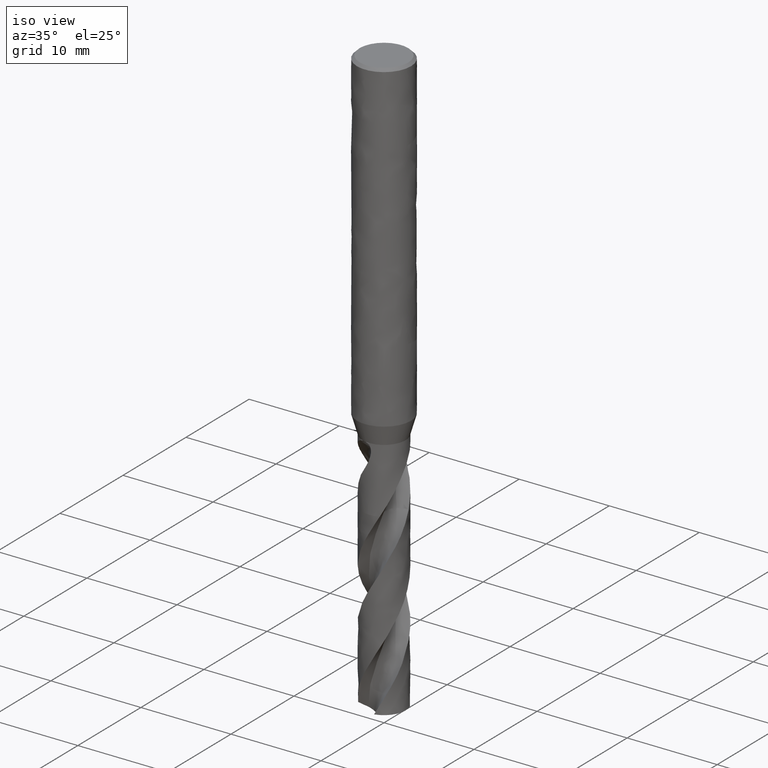
[diagram: clean part render]
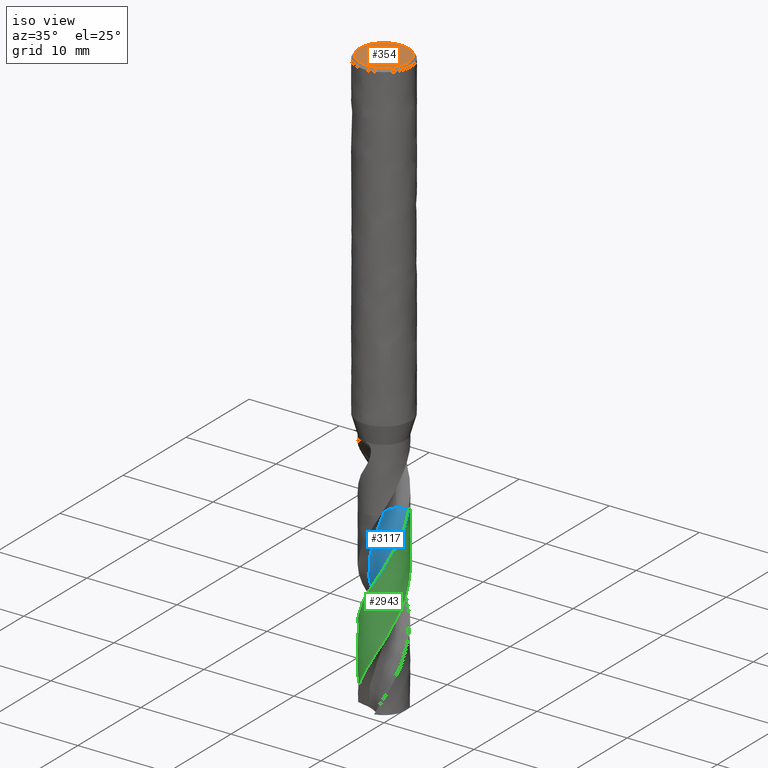
[diagram: same view with three faces highlighted in distinct colors, each labeled with its STEP entity id]
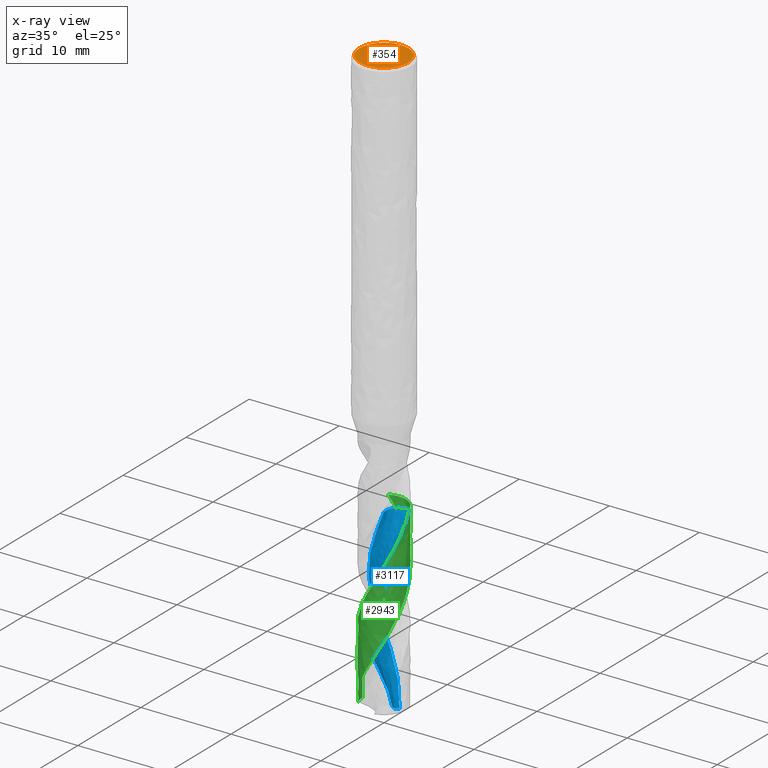
[diagram: x-ray of the same camera — body ghosted, the three highlighted faces saturated]
A machine part, iso view with three faces highlighted in distinct colors.
The next image is the same camera in x-ray (body ghosted, the three faces saturated) — at least one of them is partly hidden behind the body in this view.
Their STEP definitions:

[orange] entity #354 — the highlighted planar face has unit normal (-0, -0, 1).
#314 = VERTEX_POINT('', #315);
#315 = CARTESIAN_POINT('', (-2.7, 1.65327317884893E-16, 0.));
#321 = EDGE_CURVE('', #314, #314, #322, .T.);
#322 = CIRCLE('', #323, 2.7);
#323 = AXIS2_PLACEMENT_3D('', #324, #325, #326);
#324 = CARTESIAN_POINT('', (6.74700668366753E-80, -4.13135006948962E-96, 0.));
#325 = DIRECTION('', (3.74939945665464E-33, 6.12323399573677E-17, -1.));
#326 = DIRECTION('', (-1., 6.12323399573677E-17, 0.));
#354 = ADVANCED_FACE('', (#355), #358, .T.);
#355 = FACE_OUTER_BOUND('', #356, .T.);
#356 = EDGE_LOOP('', (#357));
#357 = ORIENTED_EDGE('', *, *, #321, .F.);
#358 = PLANE('', #359);
#359 = AXIS2_PLACEMENT_3D('', #360, #361, #362);
#360 = CARTESIAN_POINT('', (4.20021428024809, -4.20021428024809, 1.07962619604318E-14));
#361 = DIRECTION('', (-2.63163976207445E-15, -6.12323399573677E-17, 1.));
#362 = DIRECTION('', (0., 1., 6.12323399573677E-17));

[blue] entity #3117 — the highlighted face is a freeform B-spline surface patch.
#1706 = VERTEX_POINT('', #1707);
#1707 = CARTESIAN_POINT('', (0.803077531943431, -1.19148690225537, -45.2));
#1713 = EDGE_CURVE('', #1706, #1714, #1716, .T.);
#1714 = VERTEX_POINT('', #1715);
#1715 = CARTESIAN_POINT('', (2.32390896804312, 0.59953907983447, -45.2));
#1716 = CIRCLE('', #1717, 1.44004545131014);
#1717 = AXIS2_PLACEMENT_3D('', #1718, #1719, #1720);
#1718 = CARTESIAN_POINT('', (2.19830537223378, -0.835018278584366, -45.2));
#1719 = DIRECTION('', (-2.13593191488878E-14, 3.86964575329431E-15, -1.));
#1720 = DIRECTION('', (-0.968877710455911, -0.247539859783655, 1.97366766666887E-14));
#1939 = VERTEX_POINT('', #1940);
#1940 = CARTESIAN_POINT('', (1.27481456943638, 0.662532546522997, -65.4770846393661));
#1965 = EDGE_CURVE('', #1939, #1706, #1966, .T.);
#1966 = (
   BOUNDED_CURVE ()
   B_SPLINE_CURVE (3, (#1967, #1968, #1969, #1970, #1971, #1972, #1973, #1974, #1975, #1976, #1977, #1978, #1979, #1980, #1981, #1982, #1983, #1984, #1985, #1986, #1987, #1988, #1989, #1990, #1991, #1992, #1993, #1994, #1995, #1996, #1997, #1998, #1999, #2000, #2001, #2002, #2003, #2004, #2005, #2006, #2007, #2008, #2009, #2010, #2011, #2012, #2013, #2014, #2015), .UNSPECIFIED., .F., .U.)
   B_SPLINE_CURVE_WITH_KNOTS ((4, 1, 1, 1, 1, 1, 1, 1, 1, 1, 1, 1, 1, 1, 1, 1, 1, 1, 1, 1, 1, 1, 1, 1, 1, 1, 1, 1, 1, 1, 1, 1, 1, 1, 1, 1, 1, 1, 1, 1, 1, 1, 1, 1, 1, 1, 4), (0.572915360633862, 0.891111111111111, 1.33666666666667, 1.78222222222222, 2.22777777777778, 2.67333333333333, 3.11888888888889, 3.56444444444444, 4.01, 4.45555555555556, 4.90111111111111, 5.34666666666667, 5.79222222222222, 6.23777777777778, 6.68333333333333, 7.12888888888889, 7.57444444444444, 8.02, 8.46555555555556, 8.91111111111111, 9.35666666666667, 9.80222222222222, 10.2477777777778, 10.6933333333333, 11.1388888888889, 11.5844444444444, 12.03, 12.4755555555556, 12.9211111111111, 13.3666666666667, 13.8122222222222, 14.2577777777778, 14.7033333333333, 15.1488888888889, 15.5944444444444, 16.04, 16.4855555555556, 16.9311111111111, 17.3766666666667, 17.8222222222222, 18.2677777777778, 18.7133333333333, 19.1588888888889, 19.6044444444444, 20.05, 20.4955555555556, 20.85), .UNSPECIFIED.)
   CURVE ()
   GEOMETRIC_REPRESENTATION_ITEM ()
   RATIONAL_B_SPLINE_CURVE ((1., 1., 1., 1., 1., 1., 1., 1., 1., 1., 1., 1., 1., 1., 1., 1., 1., 1., 1., 1., 1., 1., 1., 1., 1., 1., 1., 1., 1., 1., 1., 1., 1., 1., 1., 1., 1., 1., 1., 1., 1., 1., 1., 1., 1., 1., 1., 1., 1.))
   REPRESENTATION_ITEM ('')
);
#1967 = CARTESIAN_POINT('', (1.27481456943638, 0.662532546522995, -65.4770846393662));
#1968 = CARTESIAN_POINT('', (1.25727487315351, 0.694291665761138, -65.3710193892071));
#1969 = CARTESIAN_POINT('', (1.21236125066679, 0.768871903842439, -65.1164356205295));
#1970 = CARTESIAN_POINT('', (1.13103956175942, 0.879908818895312, -64.7133333333333));
#1971 = CARTESIAN_POINT('', (1.02904538950616, 0.992262796860766, -64.2677777777778));
#1972 = CARTESIAN_POINT('', (0.916110744966756, 1.09306804780121, -63.8222222222222));
#1973 = CARTESIAN_POINT('', (0.793516385040707, 1.18128349624094, -63.3766666666667));
#1974 = CARTESIAN_POINT('', (0.66263884908938, 1.25600669048228, -62.9311111111111));
#1975 = CARTESIAN_POINT('', (0.524936594288354, 1.31648305179487, -62.4855555555556));
#1976 = CARTESIAN_POINT('', (0.381934182683616, 1.36211282584035, -62.04));
#1977 = CARTESIAN_POINT('', (0.23520620598718, 1.3924566298253, -61.5944444444444));
#1978 = CARTESIAN_POINT('', (0.0863607006791171, 1.40723929574377, -61.1488888888889));
#1979 = CARTESIAN_POINT('', (-0.0629776719406838, 1.40635204991239, -60.7033333333333));
#1980 = CARTESIAN_POINT('', (-0.211184543915814, 1.3898529982665, -60.2577777777778));
#1981 = CARTESIAN_POINT('', (-0.35665268308806, 1.35796592617371, -59.8122222222222));
#1982 = CARTESIAN_POINT('', (-0.497808597594719, 1.31107743116241, -59.3666666666667));
#1983 = CARTESIAN_POINT('', (-0.633128740634134, 1.24973242421357, -58.9211111111111));
#1984 = CARTESIAN_POINT('', (-0.761155159018513, 1.17462804997552, -58.4755555555556));
#1985 = CARTESIAN_POINT('', (-0.880510434791452, 1.08660609099586, -58.03));
#1986 = CARTESIAN_POINT('', (-0.989911776503229, 0.986643934982659, -57.5844444444444));
#1987 = CARTESIAN_POINT('', (-1.08818412523078, 0.875844197290683, -57.1388888888889));
#1988 = CARTESIAN_POINT('', (-1.17427215010498, 0.755423103120111, -56.6933333333333));
#1989 = CARTESIAN_POINT('', (-1.24725101885646, 0.62669774523191, -56.2477777777778));
#1990 = CARTESIAN_POINT('', (-1.3063358406235, 0.49107234323232, -55.8022222222222));
#1991 = CARTESIAN_POINT('', (-1.35088969087964, 0.350023639579452, -55.3566666666667));
#1992 = CARTESIAN_POINT('', (-1.38043014172589, 0.205085575345405, -54.9111111111111));
#1993 = CARTESIAN_POINT('', (-1.39463423484195, 0.0578333953657198, -54.4655555555556));
#1994 = CARTESIAN_POINT('', (-1.39334184898352, -0.0901326623282617, -54.02));
#1995 = CARTESIAN_POINT('', (-1.37655742892826, -0.237203934011929, -53.5744444444444));
#1996 = CARTESIAN_POINT('', (-1.34445005808717, -0.381779993445252, -53.1288888888889));
#1997 = CARTESIAN_POINT('', (-1.29735187248356, -0.522285248419817, -52.6833333333333));
#1998 = CARTESIAN_POINT('', (-1.23575482933129, -0.6571853087643, -52.2377777777778));
#1999 = CARTESIAN_POINT('', (-1.16030585888773, -0.785002965735338, -51.7922222222222));
#2000 = CARTESIAN_POINT('', (-1.07180044348854, -0.904333625988855, -51.3466666666667));
#2001 = CARTESIAN_POINT('', (-0.97117468255532, -1.0138600480091, -50.9011111111111));
#2002 = CARTESIAN_POINT('', (-0.859495916804816, -1.11236623491805, -50.4555555555556));
#2003 = CARTESIAN_POINT('', (-0.737951998657422, -1.19875034502175, -50.01));
#2004 = CARTESIAN_POINT('', (-0.607839309187691, -1.27203648996555, -49.5644444444444));
#2005 = CARTESIAN_POINT('', (-0.470549633409599, -1.33138530084794, -49.1188888888889));
#2006 = CARTESIAN_POINT('', (-0.327556020186995, -1.3761031514837, -48.6733333333333));
#2007 = CARTESIAN_POINT('', (-0.180397751645382, -1.40564994828263, -48.2277777777778));
#2008 = CARTESIAN_POINT('', (-0.0306645999038217, -1.4196453787307, -47.7822222222222));
#2009 = CARTESIAN_POINT('', (0.1200196064559, -1.41787363835685, -47.3366666666667));
#2010 = CARTESIAN_POINT('', (0.270013467514333, -1.40028624539111, -46.8911111111111));
#2011 = CARTESIAN_POINT('', (0.417676179938291, -1.3670041550779, -46.4455555555556));
#2012 = CARTESIAN_POINT('', (0.561380524224464, -1.31831447700065, -46.));
#2013 = CARTESIAN_POINT('', (0.690127765260943, -1.25901679020622, -45.5848148148148));
#2014 = CARTESIAN_POINT('', (0.768996873548974, -1.21321887316866, -45.3181481481481));
#2015 = CARTESIAN_POINT('', (0.803077531943431, -1.19148690225537, -45.2));
#2948 = EDGE_CURVE('', #1714, #2949, #2951, .T.);
#2949 = VERTEX_POINT('', #2950);
#2950 = CARTESIAN_POINT('', (2.39941408717458, -0.0530286551609175, -46.3438098042522));
#2951 = B_SPLINE_CURVE_WITH_KNOTS('', 3, (#2952, #2953, #2954, #2955, #2956, #2957, #2958, #2959, #2960, #2961, #2962, #2963, #2964, #2965, #2966, #2967), .UNSPECIFIED., .F., .U., (4, 3, 3, 3, 3, 4), (2.89293345949753, 3.13424402128989, 3.57678693145645, 4.01920450059823, 4.10674279035893, 4.21289631030251), .UNSPECIFIED.);
#2952 = CARTESIAN_POINT('', (2.32390896804312, 0.59953907983447, -45.2));
#2953 = CARTESIAN_POINT('', (2.3339432006126, 0.560644796142271, -45.269689571265));
#2954 = CARTESIAN_POINT('', (2.34300202586689, 0.521492424212088, -45.339401103801));
#2955 = CARTESIAN_POINT('', (2.35107005941288, 0.482150988520974, -45.409095047173));
#2956 = CARTESIAN_POINT('', (2.3658661421796, 0.41000216373867, -45.5369077723673));
#2957 = CARTESIAN_POINT('', (2.37734039437732, 0.337158252583067, -45.6647575522925));
#2958 = CARTESIAN_POINT('', (2.38543982237923, 0.263963735778572, -45.7925755153497));
#2959 = CARTESIAN_POINT('', (2.39353695638753, 0.190789949790305, -45.9203572766419));
#2960 = CARTESIAN_POINT('', (2.39826500298782, 0.117229956991558, -46.0481761679727));
#2961 = CARTESIAN_POINT('', (2.39960328280433, 0.0436358242121462, -46.1759660646058));
#2962 = CARTESIAN_POINT('', (2.39986807953604, 0.029074231343155, -46.201251021127));
#2963 = CARTESIAN_POINT('', (2.40000032108391, 0.0145103830742921, -46.2265364144022));
#2964 = CARTESIAN_POINT('', (2.39999999941457, -5.30100644891778E-5, -46.2518217206224));
#2965 = CARTESIAN_POINT('', (2.39999960934146, -0.0177133441677713, -46.2824840086962));
#2966 = CARTESIAN_POINT('', (2.39980427797318, -0.0353734969073657, -46.3131470181933));
#2967 = CARTESIAN_POINT('', (2.39941408717458, -0.0530286551609031, -46.3438098042522));
#3117 = ADVANCED_FACE('', (#3118), #3294, .T.);
#3118 = FACE_OUTER_BOUND('', #3119, .T.);
#3119 = EDGE_LOOP('', (#3120, #3121, #3122, #3233, #3245, #3293));
#3120 = ORIENTED_EDGE('', *, *, #1713, .F.);
#3121 = ORIENTED_EDGE('', *, *, #1965, .F.);
#3122 = ORIENTED_EDGE('', *, *, #3123, .T.);
#3123 = EDGE_CURVE('', #1939, #3124, #3126, .T.);
#3124 = VERTEX_POINT('', #3125);
#3125 = CARTESIAN_POINT('', (-0.526966706202894, 2.34143248686647, -65.1264714377611));
#3126 = B_SPLINE_CURVE_WITH_KNOTS('', 3, (#3127, #3128, #3129, #3130, #3131, #3132, #3133, #3134, #3135, #3136, #3137, #3138, #3139, #3140, #3141, #3142, #3143, #3144, #3145, #3146, #3147, #3148, #3149, #3150, #3151, #3152, #3153, #3154, #3155, #3156, #3157, #3158, #3159, #3160, #3161, #3162, #3163, #3164, #3165, #3166, #3167, #3168, #3169, #3170, #3171, #3172, #3173, #3174, #3175, #3176, #3177, #3178, #3179, #3180, #3181, #3182, #3183, #3184, #3185, #3186, #3187, #3188, #3189, #3190, #3191, #3192, #3193, #3194, #3195, #3196, #3197, #3198, #3199, #3200, #3201, #3202, #3203, #3204, #3205, #3206, #3207, #3208, #3209, #3210, #3211, #3212, #3213, #3214, #3215, #3216, #3217, #3218, #3219, #3220, #3221, #3222, #3223, #3224, #3225, #3226, #3227, #3228, #3229, #3230, #3231, #3232), .UNSPECIFIED., .F., .U., (4, 3, 3, 3, 3, 3, 3, 3, 3, 3, 3, 3, 3, 3, 3, 3, 3, 3, 3, 3, 3, 3, 3, 3, 3, 3, 3, 3, 3, 3, 3, 3, 3, 3, 3, 4), (0., 0.087684731292074, 0.175295322488019, 0.262806342100291, 0.350191711273308, 0.437430644176718, 0.52451705871405, 0.582629434854792, 0.640716057333395, 0.698791927366869, 0.756874914841799, 0.814983225203454, 0.873132314475002, 0.931332188255527, 0.989585986122884, 1.0478902330834, 1.10623644904632, 1.16461337288167, 1.25219150634294, 1.3397897620107, 1.39818224979739, 1.45679999376214, 1.48279271242351, 1.57116519810786, 1.65934565386721, 1.7473647518907, 1.83524857044105, 1.92301850897909, 2.01069176752693, 2.14207138450508, 2.27321811146901, 2.40416883096561, 2.53494843731793, 2.66557309467738, 2.79605243808518, 2.86362202092496), .UNSPECIFIED.);
#3127 = CARTESIAN_POINT('', (1.27481456943638, 0.662532546522994, -65.4770846393661));
#3128 = CARTESIAN_POINT('', (1.24811988360957, 0.655724551634121, -65.4868486133383));
#3129 = CARTESIAN_POINT('', (1.22110512755244, 0.649957128399815, -65.4965272011322));
#3130 = CARTESIAN_POINT('', (1.19387262474738, 0.645279862920442, -65.5060563255483));
#3131 = CARTESIAN_POINT('', (1.16666314784828, 0.640606552210699, -65.5155773928011));
#3132 = CARTESIAN_POINT('', (1.13919637553406, 0.637014899891573, -65.5249633360492));
#3133 = CARTESIAN_POINT('', (1.11158160993394, 0.634545164445681, -65.5341378287013));
#3134 = CARTESIAN_POINT('', (1.08399822919158, 0.632078235914641, -65.5433018943176));
#3135 = CARTESIAN_POINT('', (1.05622452085533, 0.630727114297261, -65.5522692449663));
#3136 = CARTESIAN_POINT('', (1.02837643215249, 0.630519980136208, -65.5609496700258));
#3137 = CARTESIAN_POINT('', (1.00056832840917, 0.630313143383394, -65.569617631521));
#3138 = CARTESIAN_POINT('', (0.972640655939991, 0.631247003425226, -65.5780136086354));
#3139 = CARTESIAN_POINT('', (0.944715714219949, 0.633334020700376, -65.5860328954209));
#3140 = CARTESIAN_POINT('', (0.9168375677968, 0.635417540650661, -65.5940387438648));
#3141 = CARTESIAN_POINT('', (0.888914100882971, 0.638654358183791, -65.6016826987005));
#3142 = CARTESIAN_POINT('', (0.861073650688384, 0.643036465552291, -65.6088473466789));
#3143 = CARTESIAN_POINT('', (0.833281873486842, 0.647410911755831, -65.6159994688231));
#3144 = CARTESIAN_POINT('', (0.805522395606882, 0.652935042586947, -65.6226863159333));
#3145 = CARTESIAN_POINT('', (0.777928815151525, 0.659574723413569, -65.6287838947108));
#3146 = CARTESIAN_POINT('', (0.759515741941304, 0.664005352825758, -65.6328527818427));
#3147 = CARTESIAN_POINT('', (0.741157186701619, 0.668936588210442, -65.6366635123526));
#3148 = CARTESIAN_POINT('', (0.722893823171179, 0.674350526524923, -65.6401801028899));
#3149 = CARTESIAN_POINT('', (0.704638553415683, 0.679762065544324, -65.6436951349797));
#3150 = CARTESIAN_POINT('', (0.686462532757354, 0.685660613376945, -65.6469191738826));
#3151 = CARTESIAN_POINT('', (0.668406470791701, 0.692021535491835, -65.6498195833602));
#3152 = CARTESIAN_POINT('', (0.65035375119314, 0.6983812801331, -65.6527194559415));
#3153 = CARTESIAN_POINT('', (0.632405074064036, 0.705208816721163, -65.6552981960442));
#3154 = CARTESIAN_POINT('', (0.614600220807735, 0.712472861217632, -65.6575291500708));
#3155 = CARTESIAN_POINT('', (0.59679318549199, 0.719737795953221, -65.6597603775102));
#3156 = CARTESIAN_POINT('', (0.579114405036536, 0.727445662507903, -65.6616455466639));
#3157 = CARTESIAN_POINT('', (0.561601459902441, 0.735559331871135, -65.66316649424));
#3158 = CARTESIAN_POINT('', (0.544080879514977, 0.743676538613196, -65.6646881049152));
#3159 = CARTESIAN_POINT('', (0.526711271690514, 0.752206756284645, -65.6658464049704));
#3160 = CARTESIAN_POINT('', (0.50952660662073, 0.761108598698063, -65.666633532368));
#3161 = CARTESIAN_POINT('', (0.492329881797288, 0.770016688194341, -65.6674212121512));
#3162 = CARTESIAN_POINT('', (0.475304287050778, 0.77930407565091, -65.667837859553));
#3163 = CARTESIAN_POINT('', (0.458478927194632, 0.788927315163124, -65.6678865377779));
#3164 = CARTESIAN_POINT('', (0.441638872909917, 0.798558959131875, -65.6679352585159));
#3165 = CARTESIAN_POINT('', (0.424986561972752, 0.808534229303272, -65.6676155120327));
#3166 = CARTESIAN_POINT('', (0.408545437832155, 0.818810036389638, -65.666940535529));
#3167 = CARTESIAN_POINT('', (0.392089080452236, 0.829095364347401, -65.6662649336376));
#3168 = CARTESIAN_POINT('', (0.375832896763812, 0.83968876164005, -65.665233148228));
#3169 = CARTESIAN_POINT('', (0.359794515089652, 0.850549662806429, -65.6638666759604));
#3170 = CARTESIAN_POINT('', (0.343742243817889, 0.861419969756376, -65.6624990202971));
#3171 = CARTESIAN_POINT('', (0.327898271962271, 0.872564805914712, -65.660795456079));
#3172 = CARTESIAN_POINT('', (0.312274885515964, 0.883947686849771, -65.6587831723641));
#3173 = CARTESIAN_POINT('', (0.296640252925896, 0.895338761495959, -65.656769440152));
#3174 = CARTESIAN_POINT('', (0.281218137555319, 0.906974238667269, -65.6544456540394));
#3175 = CARTESIAN_POINT('', (0.266016398015486, 0.91882252243126, -65.6518420561338));
#3176 = CARTESIAN_POINT('', (0.250806657732656, 0.930677041999587, -65.649237087943));
#3177 = CARTESIAN_POINT('', (0.235810509434249, 0.942750000107378, -65.6463509684582));
#3178 = CARTESIAN_POINT('', (0.221032490432666, 0.955014820339177, -65.6432147235678));
#3179 = CARTESIAN_POINT('', (0.19886223486963, 0.973414728942932, -65.6385096713737));
#3180 = CARTESIAN_POINT('', (0.177167435925338, 0.992258709822327, -65.633238852177));
#3181 = CARTESIAN_POINT('', (0.155954540965243, 1.01147642616169, -65.6275024028729));
#3182 = CARTESIAN_POINT('', (0.134736772068743, 1.03069855801941, -65.6217646355456));
#3183 = CARTESIAN_POINT('', (0.11398596712702, 1.05030831202165, -65.6155573493323));
#3184 = CARTESIAN_POINT('', (0.0937037134788677, 1.07025405813923, -65.6089692204045));
#3185 = CARTESIAN_POINT('', (0.0801836811516492, 1.08354977650357, -65.6045776119755));
#3186 = CARTESIAN_POINT('', (0.0668674069627327, 1.09699939171845, -65.600015136379));
#3187 = CARTESIAN_POINT('', (0.0537551290927494, 1.11059106049114, -65.5953046868696));
#3188 = CARTESIAN_POINT('', (0.0405922690038768, 1.12423516079189, -65.590576066224));
#3189 = CARTESIAN_POINT('', (0.0276320279219869, 1.13802548936226, -65.5856972682964));
#3190 = CARTESIAN_POINT('', (0.0148748614361559, 1.15195214398089, -65.5806887549109));
#3191 = CARTESIAN_POINT('', (0.00921798321201435, 1.15812760538407, -65.5784678424271));
#3192 = CARTESIAN_POINT('', (0.00360066523130163, 1.16433029885411, -65.5762212462359));
#3193 = CARTESIAN_POINT('', (-0.00197702792387813, 1.17055946456237, -65.5739505897909));
#3194 = CARTESIAN_POINT('', (-0.0209405928717922, 1.1917379670711, -65.566230598789));
#3195 = CARTESIAN_POINT('', (-0.0394514891880997, 1.21322794311195, -65.5582311784703));
#3196 = CARTESIAN_POINT('', (-0.057505479607711, 1.23500369207312, -65.5500083923109));
#3197 = CARTESIAN_POINT('', (-0.0755202394183904, 1.25673212319087, -65.5418034739414));
#3198 = CARTESIAN_POINT('', (-0.0930871823816726, 1.278753777494, -65.5333727937299));
#3199 = CARTESIAN_POINT('', (-0.110199152217818, 1.30104747809962, -65.5247618485461));
#3200 = CARTESIAN_POINT('', (-0.127279809574515, 1.32330038439291, -65.5161666601715));
#3201 = CARTESIAN_POINT('', (-0.143913364272597, 1.34583253126463, -65.5073886153172));
#3202 = CARTESIAN_POINT('', (-0.160089709551211, 1.36862530692255, -65.4984648723432));
#3203 = CARTESIAN_POINT('', (-0.176241192867865, 1.39138305160707, -65.4895548445661));
#3204 = CARTESIAN_POINT('', (-0.191942460239966, 1.41440858564717, -65.4804963708896));
#3205 = CARTESIAN_POINT('', (-0.207180618934196, 1.43768453028628, -65.4713201585876));
#3206 = CARTESIAN_POINT('', (-0.222399031994607, 1.46093031391389, -65.4621558368383));
#3207 = CARTESIAN_POINT('', (-0.237160684767149, 1.48443379731976, -65.4528708868334));
#3208 = CARTESIAN_POINT('', (-0.251450122544912, 1.50817790569721, -65.4434910877407));
#3209 = CARTESIAN_POINT('', (-0.265723820278563, 1.53189585955977, -65.4341216206467));
#3210 = CARTESIAN_POINT('', (-0.279531162499628, 1.55586198102802, -65.4246542722522));
#3211 = CARTESIAN_POINT('', (-0.292854355540933, 1.58005881992075, -65.4151110961128));
#3212 = CARTESIAN_POINT('', (-0.312819348603639, 1.61631812496384, -65.4008105117988));
#3213 = CARTESIAN_POINT('', (-0.331710287927451, 1.653119463568, -65.3863307511395));
#3214 = CARTESIAN_POINT('', (-0.349458164887272, 1.69039978978932, -65.3717350325147));
#3215 = CARTESIAN_POINT('', (-0.367174581081621, 1.72761403105847, -65.3571651869833));
#3216 = CARTESIAN_POINT('', (-0.383766181313837, 1.7653358239286, -65.3424677402878));
#3217 = CARTESIAN_POINT('', (-0.399154568978047, 1.80349436405717, -65.3276969957172));
#3218 = CARTESIAN_POINT('', (-0.41451995767795, 1.84159587372085, -65.3129483270025));
#3219 = CARTESIAN_POINT('', (-0.428698817085712, 1.88016578316982, -65.2981136912703));
#3220 = CARTESIAN_POINT('', (-0.44160455440434, 1.91912253416577, -65.2832423452145));
#3221 = CARTESIAN_POINT('', (-0.454493427811872, 1.95802838042306, -65.2683904315284));
#3222 = CARTESIAN_POINT('', (-0.466124334638434, 1.99735642492954, -65.2534879436152));
#3223 = CARTESIAN_POINT('', (-0.476403763272429, 2.03701133559176, -65.238581948909));
#3224 = CARTESIAN_POINT('', (-0.486671012735997, 2.07661926271701, -65.2236936149752));
#3225 = CARTESIAN_POINT('', (-0.495600226869353, 2.11659377194919, -65.2087865238051));
#3226 = CARTESIAN_POINT('', (-0.503092601704882, 2.15682253826466, -65.1939077647813));
#3227 = CARTESIAN_POINT('', (-0.510576641616388, 2.19700655191918, -65.1790455576958));
#3228 = CARTESIAN_POINT('', (-0.516635170164604, 2.2374895968676, -65.1641948390593));
#3229 = CARTESIAN_POINT('', (-0.521166366572766, 2.27813889348903, -65.1494045060837));
#3230 = CARTESIAN_POINT('', (-0.523512876319582, 2.29918939806474, -65.1417452352511));
#3231 = CARTESIAN_POINT('', (-0.52545105682163, 2.32029425180721, -65.1340985018164));
#3232 = CARTESIAN_POINT('', (-0.526966706202894, 2.34143248686647, -65.1264714377611));
#3233 = ORIENTED_EDGE('', *, *, #3234, .F.);
#3234 = EDGE_CURVE('', #3235, #3124, #3237, .T.);
#3235 = VERTEX_POINT('', #3236);
#3236 = CARTESIAN_POINT('', (-0.94340526813772, 2.20680459036364, -64.3526638424094));
#3237 = B_SPLINE_CURVE_WITH_KNOTS('', 3, (#3238, #3239, #3240, #3241, #3242, #3243, #3244), .UNSPECIFIED., .F., .U., (4, 3, 4), (0., 0.442829728271235, 0.889227398061136), .UNSPECIFIED.);
#3238 = CARTESIAN_POINT('', (-0.943405268137738, 2.20680459036363, -64.3526638424093));
#3239 = CARTESIAN_POINT('', (-0.876502439632001, 2.23540543755292, -64.4810954913051));
#3240 = CARTESIAN_POINT('', (-0.80828816325807, 2.26096487280404, -64.6095638074671));
#3241 = CARTESIAN_POINT('', (-0.739077868123421, 2.28336679157115, -64.7380035771765));
#3242 = CARTESIAN_POINT('', (-0.66930993588863, 2.30594920575438, -64.8674782042086));
#3243 = CARTESIAN_POINT('', (-0.598495488344258, 2.32533409968889, -64.996989067921));
#3244 = CARTESIAN_POINT('', (-0.52696670620289, 2.34143248686647, -65.1264714377611));
#3245 = ORIENTED_EDGE('', *, *, #3246, .T.);
#3246 = EDGE_CURVE('', #3235, #2949, #3247, .T.);
#3247 = (
   BOUNDED_CURVE ()
   B_SPLINE_CURVE (3, (#3248, #3249, #3250, #3251, #3252, #3253, #3254, #3255, #3256, #3257, #3258, #3259, #3260, #3261, #3262, #3263, #3264, #3265, #3266, #3267, #3268, #3269, #3270, #3271, #3272, #3273, #3274, #3275, #3276, #3277, #3278, #3279, #3280, #3281, #3282, #3283, #3284, #3285, #3286, #3287, #3288, #3289, #3290, #3291, #3292), .UNSPECIFIED., .F., .U.)
   B_SPLINE_CURVE_WITH_KNOTS ((4, 1, 1, 1, 1, 1, 1, 1, 1, 1, 1, 1, 1, 1, 1, 1, 1, 1, 1, 1, 1, 1, 1, 1, 1, 1, 1, 1, 1, 1, 1, 1, 1, 1, 1, 1, 1, 1, 1, 1, 1, 1, 4), (1.69733615759066, 1.78222222222222, 2.22777777777778, 2.67333333333333, 3.11888888888889, 3.56444444444444, 4.01, 4.45555555555556, 4.90111111111111, 5.34666666666667, 5.79222222222222, 6.23777777777778, 6.68333333333333, 7.12888888888889, 7.57444444444444, 8.02, 8.46555555555556, 8.91111111111111, 9.35666666666667, 9.80222222222222, 10.2477777777778, 10.6933333333333, 11.1388888888889, 11.5844444444444, 12.03, 12.4755555555556, 12.9211111111111, 13.3666666666667, 13.8122222222222, 14.2577777777778, 14.7033333333333, 15.1488888888889, 15.5944444444444, 16.04, 16.4855555555556, 16.9311111111111, 17.3766666666667, 17.8222222222222, 18.2677777777778, 18.7133333333333, 19.1588888888889, 19.6044444444444, 19.7061901957478), .UNSPECIFIED.)
   CURVE ()
   GEOMETRIC_REPRESENTATION_ITEM ()
   RATIONAL_B_SPLINE_CURVE ((1., 1., 1., 1., 1., 1., 1., 1., 1., 1., 1., 1., 1., 1., 1., 1., 1., 1., 1., 1., 1., 1., 1., 1., 1., 1., 1., 1., 1., 1., 1., 1., 1., 1., 1., 1., 1., 1., 1., 1., 1., 1., 1., 1., 1.))
   REPRESENTATION_ITEM ('')
);
#3248 = CARTESIAN_POINT('', (-0.943405268137735, 2.20680459036363, -64.3526638424093));
#3249 = CARTESIAN_POINT('', (-0.958123583624463, 2.20011508341076, -64.3243684875322));
#3250 = CARTESIAN_POINT('', (-1.04965703574468, 2.15740307754976, -64.1475546141365));
#3251 = CARTESIAN_POINT('', (-1.21281639905107, 2.06844749868637, -63.8222222222222));
#3252 = CARTESIAN_POINT('', (-1.4217963286567, 1.92420745270745, -63.3766666666667));
#3253 = CARTESIAN_POINT('', (-1.61409592728197, 1.75922490970569, -62.9311111111111));
#3254 = CARTESIAN_POINT('', (-1.7876959492699, 1.57538254015133, -62.4855555555556));
#3255 = CARTESIAN_POINT('', (-1.94078491974815, 1.37475520579623, -62.04));
#3256 = CARTESIAN_POINT('', (-2.0717770052282, 1.15958764292516, -61.5944444444444));
#3257 = CARTESIAN_POINT('', (-2.1793274744598, 0.932270375341694, -61.1488888888889));
#3258 = CARTESIAN_POINT('', (-2.26234565793574, 0.695314314671471, -60.7033333333333));
#3259 = CARTESIAN_POINT('', (-2.32000528035072, 0.451324247380879, -60.2577777777778));
#3260 = CARTESIAN_POINT('', (-2.35175208155689, 0.202971488842475, -59.8122222222222));
#3261 = CARTESIAN_POINT('', (-2.35730866342467, -0.0470340282560145, -59.3666666666667));
#3262 = CARTESIAN_POINT('', (-2.33667652759888, -0.29597195486187, -58.9211111111111));
#3263 = CARTESIAN_POINT('', (-2.29013529542665, -0.541139739633871, -58.4755555555556));
#3264 = CARTESIAN_POINT('', (-2.21823912791802, -0.779880580700433, -58.03));
#3265 = CARTESIAN_POINT('', (-2.12181038977303, -1.00961084336977, -57.5844444444444));
#3266 = CARTESIAN_POINT('', (-2.00193062718514, -1.22784667805832, -57.1388888888889));
#3267 = CARTESIAN_POINT('', (-1.85992895406225, -1.43222958107502, -56.6933333333333));
#3268 = CARTESIAN_POINT('', (-1.69736796530173, -1.62055065152025, -56.2477777777778));
#3269 = CARTESIAN_POINT('', (-1.5160273186145, -1.79077331034133, -55.8022222222222));
#3270 = CARTESIAN_POINT('', (-1.31788514793361, -1.94105426241368, -55.3566666666667));
#3271 = CARTESIAN_POINT('', (-1.10509749148815, -2.06976249925957, -54.9111111111111));
#3272 = CARTESIAN_POINT('', (-0.87997593601335, -2.17549615853019, -54.4655555555556));
#3273 = CARTESIAN_POINT('', (-0.644963695151285, -2.2570970765074, -54.02));
#3274 = CARTESIAN_POINT('', (-0.40261035473934, -2.31366289145874, -53.5744444444444));
#3275 = CARTESIAN_POINT('', (-0.155545530263002, -2.3445565785262, -53.1288888888889));
#3276 = CARTESIAN_POINT('', (0.0935483078389358, -2.34941332075676, -52.6833333333333));
#3277 = CARTESIAN_POINT('', (0.341963577175837, -2.3281446456948, -52.2377777777778));
#3278 = CARTESIAN_POINT('', (0.586995625051479, -2.28093978244804, -51.7922222222222));
#3279 = CARTESIAN_POINT('', (0.825970795657271, -2.20826422010311, -51.3466666666667));
#3280 = CARTESIAN_POINT('', (1.05627424871382, -2.11085547458065, -50.9011111111111));
#3281 = CARTESIAN_POINT('', (1.27537725687266, -1.98971609729645, -50.4555555555556));
#3282 = CARTESIAN_POINT('', (1.48086371317627, -1.8461039849998, -50.01));
#3283 = CARTESIAN_POINT('', (1.67045558581371, -1.68152007610265, -49.5644444444444));
#3284 = CARTESIAN_POINT('', (1.84203706752569, -1.49769354286691, -49.1188888888889));
#3285 = CARTESIAN_POINT('', (1.99367717281594, -1.29656461676913, -48.6733333333333));
#3286 = CARTESIAN_POINT('', (2.1236505690284, -1.08026519358505, -48.2277777777778));
#3287 = CARTESIAN_POINT('', (2.23045636974448, -0.851097438681689, -47.7822222222222));
#3288 = CARTESIAN_POINT('', (2.31283490930979, -0.611510439251125, -47.3366666666667));
#3289 = CARTESIAN_POINT('', (2.36978151867914, -0.364075693798824, -46.8911111111111));
#3290 = CARTESIAN_POINT('', (2.39264344066128, -0.17643603250042, -46.5601588236396));
#3291 = CARTESIAN_POINT('', (2.39854816804383, -0.0723874862911478, -46.3777250546867));
#3292 = CARTESIAN_POINT('', (2.39941408717458, -0.053028655160911, -46.3438098042522));
#3293 = ORIENTED_EDGE('', *, *, #2948, .F.);
#3294 = (
   BOUNDED_SURFACE ()
   B_SPLINE_SURFACE (3, 2, ((#3295, #3296, #3297, #3298, #3299), (#3300, #3301, #3302, #3303, #3304), (#3305, #3306, #3307, #3308, #3309), (#3310, #3311, #3312, #3313, #3314), (#3315, #3316, #3317, #3318, #3319), (#3320, #3321, #3322, #3323, #3324), (#3325, #3326, #3327, #3328, #3329), (#3330, #3331, #3332, #3333, #3334), (#3335, #3336, #3337, #3338, #3339), (#3340, #3341, #3342, #3343, #3344), (#3345, #3346, #3347, #3348, #3349), (#3350, #3351, #3352, #3353, #3354), (#3355, #3356, #3357, #3358, #3359), (#3360, #3361, #3362, #3363, #3364), (#3365, #3366, #3367, #3368, #3369), (#3370, #3371, #3372, #3373, #3374), (#3375, #3376, #3377, #3378, #3379), (#3380, #3381, #3382, #3383, #3384), (#3385, #3386, #3387, #3388, #3389), (#3390, #3391, #3392, #3393, #3394), (#3395, #3396, #3397, #3398, #3399), (#3400, #3401, #3402, #3403, #3404), (#3405, #3406, #3407, #3408, #3409), (#3410, #3411, #3412, #3413, #3414), (#3415, #3416, #3417, #3418, #3419), (#3420, #3421, #3422, #3423, #3424), (#3425, #3426, #3427, #3428, #3429), (#3430, #3431, #3432, #3433, #3434), (#3435, #3436, #3437, #3438, #3439), (#3440, #3441, #3442, #3443, #3444), (#3445, #3446, #3447, #3448, #3449), (#3450, #3451, #3452, #3453, #3454), (#3455, #3456, #3457, #3458, #3459), (#3460, #3461, #3462, #3463, #3464), (#3465, #3466, #3467, #3468, #3469), (#3470, #3471, #3472, #3473, #3474), (#3475, #3476, #3477, #3478, #3479), (#3480, #3481, #3482, #3483, #3484), (#3485, #3486, #3487, #3488, #3489), (#3490, #3491, #3492, #3493, #3494), (#3495, #3496, #3497, #3498, #3499), (#3500, #3501, #3502, #3503, #3504), (#3505, #3506, #3507, #3508, #3509), (#3510, #3511, #3512, #3513, #3514), (#3515, #3516, #3517, #3518, #3519), (#3520, #3521, #3522, #3523, #3524), (#3525, #3526, #3527, #3528, #3529), (#3530, #3531, #3532, #3533, #3534), (#3535, #3536, #3537, #3538, #3539)), .UNSPECIFIED., .F., .F., .U.)
   B_SPLINE_SURFACE_WITH_KNOTS ((4, 1, 1, 1, 1, 1, 1, 1, 1, 1, 1, 1, 1, 1, 1, 1, 1, 1, 1, 1, 1, 1, 1, 1, 1, 1, 1, 1, 1, 1, 1, 1, 1, 1, 1, 1, 1, 1, 1, 1, 1, 1, 1, 1, 1, 1, 4), (3, 2, 3), (0.382064741480812, 0.891111111111111, 1.33666666666667, 1.78222222222222, 2.22777777777778, 2.67333333333333, 3.11888888888889, 3.56444444444444, 4.01, 4.45555555555556, 4.90111111111111, 5.34666666666667, 5.79222222222222, 6.23777777777778, 6.68333333333333, 7.12888888888889, 7.57444444444444, 8.02, 8.46555555555556, 8.91111111111111, 9.35666666666667, 9.80222222222222, 10.2477777777778, 10.6933333333333, 11.1388888888889, 11.5844444444444, 12.03, 12.4755555555556, 12.9211111111111, 13.3666666666667, 13.8122222222222, 14.2577777777778, 14.7033333333333, 15.1488888888889, 15.5944444444444, 16.04, 16.4855555555556, 16.9311111111111, 17.3766666666667, 17.8222222222222, 18.2677777777778, 18.7133333333333, 19.1588888888889, 19.6044444444444, 20.05, 20.4955555555556, 20.85), (0., 0.5, 1.), .UNSPECIFIED.)
   GEOMETRIC_REPRESENTATION_ITEM ()
   RATIONAL_B_SPLINE_SURFACE (((1., 0.887010833178221, 1., 0.887010833178221, 1.), (1., 0.887010833178221, 1., 0.887010833178221, 1.), (1., 0.887010833178221, 1., 0.887010833178221, 1.), (1., 0.887010833178222, 1., 0.887010833178222, 1.), (1., 0.887010833178222, 1., 0.887010833178222, 1.), (1., 0.887010833178221, 1., 0.887010833178221, 1.), (1., 0.887010833178222, 1., 0.887010833178222, 1.), (1., 0.887010833178222, 1., 0.887010833178222, 1.), (1., 0.887010833178222, 1., 0.887010833178222, 1.), (1., 0.887010833178222, 1., 0.887010833178222, 1.), (1., 0.887010833178222, 1., 0.887010833178222, 1.), (1., 0.887010833178222, 1., 0.887010833178222, 1.), (1., 0.887010833178222, 1., 0.887010833178222, 1.), (1., 0.887010833178222, 1., 0.887010833178222, 1.), (1., 0.887010833178222, 1., 0.887010833178222, 1.), (1., 0.887010833178222, 1., 0.887010833178222, 1.), (1., 0.887010833178222, 1., 0.887010833178222, 1.), (1., 0.887010833178222, 1., 0.887010833178222, 1.), (1., 0.887010833178222, 1., 0.887010833178222, 1.), (1., 0.887010833178221, 1., 0.887010833178221, 1.), (1., 0.887010833178222, 1., 0.887010833178222, 1.), (1., 0.887010833178222, 1., 0.887010833178222, 1.), (1., 0.887010833178222, 1., 0.887010833178222, 1.), (1., 0.887010833178222, 1., 0.887010833178222, 1.), (1., 0.887010833178222, 1., 0.887010833178222, 1.), (1., 0.887010833178221, 1., 0.887010833178221, 1.), (1., 0.887010833178222, 1., 0.887010833178222, 1.), (1., 0.887010833178221, 1., 0.887010833178221, 1.), (1., 0.887010833178222, 1., 0.887010833178222, 1.), (1., 0.887010833178222, 1., 0.887010833178222, 1.), (1., 0.887010833178222, 1., 0.887010833178222, 1.), (1., 0.887010833178221, 1., 0.887010833178221, 1.), (1., 0.887010833178222, 1., 0.887010833178222, 1.), (1., 0.887010833178222, 1., 0.887010833178222, 1.), (1., 0.887010833178222, 1., 0.887010833178222, 1.), (1., 0.887010833178222, 1., 0.887010833178222, 1.), (1., 0.887010833178222, 1., 0.887010833178222, 1.), (1., 0.887010833178222, 1., 0.887010833178222, 1.), (1., 0.887010833178222, 1., 0.887010833178222, 1.), (1., 0.887010833178222, 1., 0.887010833178222, 1.), (1., 0.887010833178222, 1., 0.887010833178222, 1.), (1., 0.887010833178222, 1., 0.887010833178222, 1.), (1., 0.887010833178222, 1., 0.887010833178222, 1.), (1., 0.887010833178221, 1., 0.887010833178221, 1.), (1., 0.887010833178222, 1., 0.887010833178222, 1.), (1., 0.887010833178222, 1., 0.887010833178222, 1.), (1., 0.887010833178222, 1., 0.887010833178222, 1.), (1., 0.887010833178222, 1., 0.887010833178222, 1.), (1., 0.887010833178222, 1., 0.887010833178222, 1.)))
   REPRESENTATION_ITEM ('')
   SURFACE ()
);
#3295 = CARTESIAN_POINT('', (-0.219601503682789, 2.40824764181456, -65.6679352585192));
#3296 = CARTESIAN_POINT('', (-0.411164600361909, 1.68268560604943, -65.6679352585192));
#3297 = CARTESIAN_POINT('', (0.0733049461639941, 1.10960101696863, -65.6679352585192));
#3298 = CARTESIAN_POINT('', (0.557774492689898, 0.53651642788783, -65.6679352585192));
#3299 = CARTESIAN_POINT('', (1.30509822140289, 0.604662830987615, -65.6679352585192));
#3300 = CARTESIAN_POINT('', (-0.31663188998925, 2.39687025846426, -65.4982531353091));
#3301 = CARTESIAN_POINT('', (-0.478692999503527, 1.66432757656514, -65.4982531353091));
#3302 = CARTESIAN_POINT('', (0.0284164022367854, 1.11140566644804, -65.4982531353091));
#3303 = CARTESIAN_POINT('', (0.535525803977098, 0.558483756330939, -65.4982531353091));
#3304 = CARTESIAN_POINT('', (1.27931892047201, 0.656740480659304, -65.4982531353091));
#3305 = CARTESIAN_POINT('', (-0.497025666288239, 2.36465682196512, -65.1800524935805));
#3306 = CARTESIAN_POINT('', (-0.603064254459, 1.62236158249529, -65.1800524935805));
#3307 = CARTESIAN_POINT('', (-0.0558328270999884, 1.10973679804625, -65.1800524935805));
#3308 = CARTESIAN_POINT('', (0.491398600259024, 0.597112013597199, -65.1800524935805));
#3309 = CARTESIAN_POINT('', (1.22519529235754, 0.751348258968009, -65.1800524935805));
#3310 = CARTESIAN_POINT('', (-0.753809171951563, 2.28825263618813, -64.7133333333333));
#3311 = CARTESIAN_POINT('', (-0.776859497178428, 1.54098340065985, -64.7133333333333));
#3312 = CARTESIAN_POINT('', (-0.177953498661526, 1.09348565451966, -64.7133333333333));
#3313 = CARTESIAN_POINT('', (0.420952499855377, 0.645987908379469, -64.7133333333333));
#3314 = CARTESIAN_POINT('', (1.13103956175942, 0.879908818895312, -64.7133333333333));
#3315 = CARTESIAN_POINT('', (-0.989363209117138, 2.19027567609914, -64.2677777777778));
#3316 = CARTESIAN_POINT('', (-0.933326238839749, 1.4465763445381, -64.2677777777778));
#3317 = CARTESIAN_POINT('', (-0.291981925339552, 1.06591073098314, -64.2677777777778));
#3318 = CARTESIAN_POINT('', (0.349362388160645, 0.685245117428193, -64.2677777777778));
#3319 = CARTESIAN_POINT('', (1.02904538950616, 0.992262796860766, -64.2677777777778));
#3320 = CARTESIAN_POINT('', (-1.21281639905107, 2.06844749868637, -63.8222222222222));
#3321 = CARTESIAN_POINT('', (-1.07868933549846, 1.33655750641038, -63.8222222222222));
#3322 = CARTESIAN_POINT('', (-0.402228029000193, 1.02663311114333, -63.8222222222222));
#3323 = CARTESIAN_POINT('', (0.274233277498073, 0.716708715876281, -63.8222222222222));
#3324 = CARTESIAN_POINT('', (0.916110744966756, 1.09306804780121, -63.8222222222222));
#3325 = CARTESIAN_POINT('', (-1.4217963286567, 1.92420745270745, -63.3766666666667));
#3326 = CARTESIAN_POINT('', (-1.21142094467783, 1.2121983116737, -63.3766666666667));
#3327 = CARTESIAN_POINT('', (-0.507510838208998, 0.976136071764575, -63.3766666666667));
#3328 = CARTESIAN_POINT('', (0.196399268259829, 0.740073831855444, -63.3766666666667));
#3329 = CARTESIAN_POINT('', (0.793516385040707, 1.18128349624094, -63.3766666666667));
#3330 = CARTESIAN_POINT('', (-1.61409592728197, 1.75922490970569, -62.9311111111111));
#3331 = CARTESIAN_POINT('', (-1.33013476533817, 1.07491558430312, -62.9311111111111));
#3332 = CARTESIAN_POINT('', (-0.60670795117881, 0.915019246381873, -62.9311111111111));
#3333 = CARTESIAN_POINT('', (0.116718862980549, 0.755122908460624, -62.9311111111111));
#3334 = CARTESIAN_POINT('', (0.66263884908938, 1.25600669048228, -62.9311111111111));
#3335 = CARTESIAN_POINT('', (-1.7876959492699, 1.57538254015133, -62.4855555555556));
#3336 = CARTESIAN_POINT('', (-1.43360018943659, 0.926257313547509, -62.4855555555556));
#3337 = CARTESIAN_POINT('', (-0.698766949012313, 0.843992644868045, -62.4855555555556));
#3338 = CARTESIAN_POINT('', (0.0360662914119655, 0.761727976188581, -62.4855555555556));
#3339 = CARTESIAN_POINT('', (0.524936594288354, 1.31648305179487, -62.4855555555556));
#3340 = CARTESIAN_POINT('', (-1.94078491974815, 1.37475520579623, -62.04));
#3341 = CARTESIAN_POINT('', (-1.52075419118147, 0.767885584407819, -62.04));
#3342 = CARTESIAN_POINT('', (-0.782715971755059, 0.763868499611738, -62.04));
#3343 = CARTESIAN_POINT('', (-0.0446777523286481, 0.759851414815657, -62.04));
#3344 = CARTESIAN_POINT('', (0.381934182683616, 1.36211282584035, -62.04));
#3345 = CARTESIAN_POINT('', (-2.0717770052282, 1.15958764292516, -61.5944444444444));
#3346 = CARTESIAN_POINT('', (-1.59071161790195, 0.601558871842059, -61.5944444444444));
#3347 = CARTESIAN_POINT('', (-0.857673438782723, 0.675552413407835, -61.5944444444444));
#3348 = CARTESIAN_POINT('', (-0.124635259663498, 0.749545954973611, -61.5944444444444));
#3349 = CARTESIAN_POINT('', (0.23520620598718, 1.3924566298253, -61.5944444444444));
#3350 = CARTESIAN_POINT('', (-2.1793274744598, 0.932270375341694, -61.1488888888889));
#3351 = CARTESIAN_POINT('', (-1.64277358597641, 0.429113336679908, -61.1488888888889));
#3352 = CARTESIAN_POINT('', (-0.922856801891615, 0.580033530141713, -61.1488888888889));
#3353 = CARTESIAN_POINT('', (-0.202940017806818, 0.730953723603518, -61.1488888888889));
#3354 = CARTESIAN_POINT('', (0.0863607006791171, 1.40723929574377, -61.1488888888889));
#3355 = CARTESIAN_POINT('', (-2.26234565793574, 0.695314314671471, -60.7033333333333));
#3356 = CARTESIAN_POINT('', (-1.67643396549303, 0.25244345711941, -60.7033333333333));
#3357 = CARTESIAN_POINT('', (-0.977590256605534, 0.478373929518238, -60.7033333333333));
#3358 = CARTESIAN_POINT('', (-0.278746547718041, 0.704304401917067, -60.7033333333333));
#3359 = CARTESIAN_POINT('', (-0.0629776719406838, 1.40635204991239, -60.7033333333333));
#3360 = CARTESIAN_POINT('', (-2.32000528035072, 0.451324247380879, -60.2577777777778));
#3361 = CARTESIAN_POINT('', (-1.69138388576277, 0.0734821503991926, -60.2577777777778));
#3362 = CARTESIAN_POINT('', (-1.02131134027999, 0.37169732736955, -60.2577777777778));
#3363 = CARTESIAN_POINT('', (-0.351238794797224, 0.669912504339908, -60.2577777777778));
#3364 = CARTESIAN_POINT('', (-0.211184543915814, 1.3898529982665, -60.2577777777778));
#3365 = CARTESIAN_POINT('', (-2.35175208155689, 0.202971488842475, -59.8122222222222));
#3366 = CARTESIAN_POINT('', (-1.68751423160862, -0.105819407804172, -59.8122222222222));
#3367 = CARTESIAN_POINT('', (-1.05357635849988, 0.26117720279885, -59.8122222222222));
#3368 = CARTESIAN_POINT('', (-0.419638485391137, 0.628173813401871, -59.8122222222222));
#3369 = CARTESIAN_POINT('', (-0.35665268308806, 1.35796592617371, -59.8122222222222));
#3370 = CARTESIAN_POINT('', (-2.35730866342467, -0.0470340282560145, -59.3666666666667));
#3371 = CARTESIAN_POINT('', (-1.66491611446111, -0.283512070258593, -59.3666666666667));
#3372 = CARTESIAN_POINT('', (-1.07406459213471, 0.148024469068259, -59.3666666666667));
#3373 = CARTESIAN_POINT('', (-0.483213069808301, 0.579561008395111, -59.3666666666667));
#3374 = CARTESIAN_POINT('', (-0.497808597594719, 1.31107743116241, -59.3666666666667));
#3375 = CARTESIAN_POINT('', (-2.33667652759888, -0.29597195486187, -58.9211111111111));
#3376 = CARTESIAN_POINT('', (-1.62387932278404, -0.457668911894956, -58.9211111111111));
#3377 = CARTESIAN_POINT('', (-1.0825812492964, 0.0334748112087528, -58.9211111111111));
#3378 = CARTESIAN_POINT('', (-0.541283175808753, 0.524618534312461, -58.9211111111111));
#3379 = CARTESIAN_POINT('', (-0.633128740634134, 1.24973242421357, -58.9211111111111));
#3380 = CARTESIAN_POINT('', (-2.29013529542665, -0.541139739633871, -58.4755555555556));
#3381 = CARTESIAN_POINT('', (-1.56488877496876, -0.626405133753582, -58.4755555555556));
#3382 = CARTESIAN_POINT('', (-1.07905913838826, -0.0812241848102718, -58.4755555555556));
#3383 = CARTESIAN_POINT('', (-0.593229501807756, 0.463956764133038, -58.4755555555556));
#3384 = CARTESIAN_POINT('', (-0.761155159018513, 1.17462804997552, -58.4755555555556));
#3385 = CARTESIAN_POINT('', (-2.21823912791802, -0.779880580700433, -58.03));
#3386 = CARTESIAN_POINT('', (-1.48861901658394, -0.787897483930405, -58.03));
#3387 = CARTESIAN_POINT('', (-1.06355905056519, -0.194825984961956, -58.03));
#3388 = CARTESIAN_POINT('', (-0.638499084546442, 0.398245514006494, -58.03));
#3389 = CARTESIAN_POINT('', (-0.880510434791452, 1.08660609099586, -58.03));
#3390 = CARTESIAN_POINT('', (-2.12181038977303, -1.00961084336977, -57.5844444444444));
#3391 = CARTESIAN_POINT('', (-1.39592682201433, -0.940403007704229, -57.5844444444444));
#3392 = CARTESIAN_POINT('', (-1.03626885207976, -0.306098015510292, -57.5844444444444));
#3393 = CARTESIAN_POINT('', (-0.676610882145178, 0.328206976683645, -57.5844444444444));
#3394 = CARTESIAN_POINT('', (-0.989911776503229, 0.986643934982659, -57.5844444444444));
#3395 = CARTESIAN_POINT('', (-2.00193062718514, -1.22784667805832, -57.1388888888889));
#3396 = CARTESIAN_POINT('', (-1.2878419780742, -1.08227694599897, -57.1388888888889));
#3397 = CARTESIAN_POINT('', (-0.997501299081434, -0.413834401120997, -57.1388888888889));
#3398 = CARTESIAN_POINT('', (-0.707160620088668, 0.254608143756973, -57.1388888888889));
#3399 = CARTESIAN_POINT('', (-1.08818412523078, 0.875844197290683, -57.1388888888889));
#3400 = CARTESIAN_POINT('', (-1.85992895406225, -1.43222958107502, -56.6933333333333));
#3401 = CARTESIAN_POINT('', (-1.16555634395446, -1.21198960991115, -56.6933333333333));
#3402 = CARTESIAN_POINT('', (-0.947690599362083, -0.516868409040841, -56.6933333333333));
#3403 = CARTESIAN_POINT('', (-0.729824854769709, 0.178252791829471, -56.6933333333333));
#3404 = CARTESIAN_POINT('', (-1.17427215010498, 0.755423103120111, -56.6933333333333));
#3405 = CARTESIAN_POINT('', (-1.69736796530173, -1.62055065152025, -56.2477777777778));
#3406 = CARTESIAN_POINT('', (-1.0304112977326, -1.32814206910372, -56.2477777777778));
#3407 = CARTESIAN_POINT('', (-0.887387757201885, -0.614084478751358, -56.2477777777778));
#3408 = CARTESIAN_POINT('', (-0.744364216671169, 0.0999731116010019, -56.2477777777778));
#3409 = CARTESIAN_POINT('', (-1.24725101885646, 0.62669774523191, -56.2477777777778));
#3410 = CARTESIAN_POINT('', (-1.5160273186145, -1.79077331034133, -55.8022222222222));
#3411 = CARTESIAN_POINT('', (-0.883883694511503, -1.42948050334865, -55.8022222222222));
#3412 = CARTESIAN_POINT('', (-0.817254748771425, -0.704429720666308, -55.8022222222222));
#3413 = CARTESIAN_POINT('', (-0.750625803031348, 0.020621062016038, -55.8022222222222));
#3414 = CARTESIAN_POINT('', (-1.3063358406235, 0.49107234323232, -55.8022222222222));
#3415 = CARTESIAN_POINT('', (-1.31788514793361, -1.94105426241368, -55.3566666666667));
#3416 = CARTESIAN_POINT('', (-0.727570474937904, -1.51490907929093, -55.3566666666667));
#3417 = CARTESIAN_POINT('', (-0.738057586394202, -0.786924772629003, -55.3566666666667));
#3418 = CARTESIAN_POINT('', (-0.7485446978505, -0.0589404659670723, -55.3566666666667));
#3419 = CARTESIAN_POINT('', (-1.35088969087964, 0.350023639579452, -55.3566666666667));
#3420 = CARTESIAN_POINT('', (-1.10509749148815, -2.06976249925957, -54.9111111111111));
#3421 = CARTESIAN_POINT('', (-0.56317207527513, -1.58350122849398, -54.9111111111111));
#3422 = CARTESIAN_POINT('', (-0.650658340281806, -0.860673909129657, -54.9111111111111));
#3423 = CARTESIAN_POINT('', (-0.738144605288482, -0.137846589765335, -54.9111111111111));
#3424 = CARTESIAN_POINT('', (-1.38043014172589, 0.205085575345405, -54.9111111111111));
#3425 = CARTESIAN_POINT('', (-0.87997593601335, -2.17549615853019, -54.4655555555556));
#3426 = CARTESIAN_POINT('', (-0.392474801266444, -1.63450921789421, -54.4655555555556));
#3427 = CARTESIAN_POINT('', (-0.556006196036832, -0.924874305250641, -54.4655555555556));
#3428 = CARTESIAN_POINT('', (-0.719537590807219, -0.215239392607071, -54.4655555555556));
#3429 = CARTESIAN_POINT('', (-1.39463423484195, 0.0578333953657198, -54.4655555555556));
#3430 = CARTESIAN_POINT('', (-0.644963695151285, -2.2570970765074, -54.02));
#3431 = CARTESIAN_POINT('', (-0.217332337637099, -1.66737191981242, -54.02));
#3432 = CARTESIAN_POINT('', (-0.455127635197491, -0.978824365298926, -54.02));
#3433 = CARTESIAN_POINT('', (-0.692922932757883, -0.290276810785434, -54.02));
#3434 = CARTESIAN_POINT('', (-1.39334184898352, -0.0901326623282617, -54.02));
#3435 = CARTESIAN_POINT('', (-0.40261035473934, -2.31366289145874, -53.5744444444444));
#3436 = CARTESIAN_POINT('', (-0.0396465731654953, -1.68172070550922, -53.5744444444444));
#3437 = CARTESIAN_POINT('', (-0.349115834298878, -1.02193103483332, -53.5744444444444));
#3438 = CARTESIAN_POINT('', (-0.65858509543226, -0.362141364157425, -53.5744444444444));
#3439 = CARTESIAN_POINT('', (-1.37655742892826, -0.237203934011929, -53.5744444444444));
#3440 = CARTESIAN_POINT('', (-0.155545530263002, -2.3445565785262, -53.1288888888889));
#3441 = CARTESIAN_POINT('', (0.138652072259453, -1.67738340379165, -53.1288888888889));
#3442 = CARTESIAN_POINT('', (-0.239119385281278, -1.0537160242672, -53.1288888888889));
#3443 = CARTESIAN_POINT('', (-0.616890842822009, -0.430048644742757, -53.1288888888889));
#3444 = CARTESIAN_POINT('', (-1.34445005808717, -0.381779993445252, -53.1288888888889));
#3445 = CARTESIAN_POINT('', (0.0935483078389358, -2.34941332075676, -52.6833333333333));
#3446 = CARTESIAN_POINT('', (0.315624627342008, -1.65438628423309, -52.6833333333333));
#3447 = CARTESIAN_POINT('', (-0.126330446523945, -1.0738208823471, -52.6833333333333));
#3448 = CARTESIAN_POINT('', (-0.568285520389899, -0.493255480461108, -52.6833333333333));
#3449 = CARTESIAN_POINT('', (-1.29735187248356, -0.522285248419817, -52.6833333333333));
#3450 = CARTESIAN_POINT('', (0.341963577175837, -2.3281446456948, -52.2377777777778));
#3451 = CARTESIAN_POINT('', (0.489343661449389, -1.6129540430107, -52.2377777777778));
#3452 = CARTESIAN_POINT('', (-0.0119724392688218, -1.08201086849124, -52.2377777777778));
#3453 = CARTESIAN_POINT('', (-0.513288539987033, -0.551067693971777, -52.2377777777778));
#3454 = CARTESIAN_POINT('', (-1.23575482933129, -0.6571853087643, -52.2377777777778));
#3455 = CARTESIAN_POINT('', (0.586995625051479, -2.28093978244804, -51.7922222222222));
#3456 = CARTESIAN_POINT('', (0.657913293234849, -1.55350778804072, -51.7922222222222));
#3457 = CARTESIAN_POINT('', (0.102712591325823, -1.07817758413223, -51.7922222222222));
#3458 = CARTESIAN_POINT('', (-0.452488110583204, -0.602847380223727, -51.7922222222222));
#3459 = CARTESIAN_POINT('', (-1.16030585888773, -0.785002965735338, -51.7922222222222));
#3460 = CARTESIAN_POINT('', (0.825970795657271, -2.20826422010311, -51.3466666666667));
#3461 = CARTESIAN_POINT('', (0.819488920322886, -1.4766610388495, -51.3466666666667));
#3462 = CARTESIAN_POINT('', (0.216476827835491, -1.06234033475395, -51.3466666666667));
#3463 = CARTESIAN_POINT('', (-0.386535264651905, -0.648019630658403, -51.3466666666667));
#3464 = CARTESIAN_POINT('', (-1.07180044348854, -0.904333625988855, -51.3466666666667));
#3465 = CARTESIAN_POINT('', (1.05627424871382, -2.11085547458065, -50.9011111111111));
#3466 = CARTESIAN_POINT('', (0.972296476638703, -1.38321377529427, -50.9011111111111));
#3467 = CARTESIAN_POINT('', (0.328079619918804, -1.03464620614734, -50.9011111111111));
#3468 = CARTESIAN_POINT('', (-0.316137236801095, -0.686078637000409, -50.9011111111111));
#3469 = CARTESIAN_POINT('', (-0.97117468255532, -1.0138600480091, -50.9011111111111));
#3470 = CARTESIAN_POINT('', (1.27537725687266, -1.98971609729645, -50.4555555555556));
#3471 = CARTESIAN_POINT('', (1.11465102775207, -1.27414458771225, -50.4555555555556));
#3472 = CARTESIAN_POINT('', (0.436300385114073, -0.99536885044559, -50.4555555555556));
#3473 = CARTESIAN_POINT('', (-0.242050257523921, -0.716593113178934, -50.4555555555556));
#3474 = CARTESIAN_POINT('', (-0.859495916804816, -1.11236623491805, -50.4555555555556));
#3475 = CARTESIAN_POINT('', (1.48086371317627, -1.8461039849998, -50.01));
#3476 = CARTESIAN_POINT('', (1.24497452018961, -1.15060099907485, -50.01));
#3477 = CARTESIAN_POINT('', (0.539951344773078, -0.944905989597206, -50.01));
#3478 = CARTESIAN_POINT('', (-0.165071830643455, -0.739210980119565, -50.01));
#3479 = CARTESIAN_POINT('', (-0.737951998657422, -1.19875034502175, -50.01));
#3480 = CARTESIAN_POINT('', (1.67045558581371, -1.68152007610265, -49.5644444444444));
#3481 = CARTESIAN_POINT('', (1.36181250763025, -1.01388804747153, -49.5644444444444));
#3482 = CARTESIAN_POINT('', (0.637889969655379, -0.883775656145107, -49.5644444444444));
#3483 = CARTESIAN_POINT('', (-0.0860325683194898, -0.753663264818682, -49.5644444444444));
#3484 = CARTESIAN_POINT('', (-0.607839309187691, -1.27203648996555, -49.5644444444444));
#3485 = CARTESIAN_POINT('', (1.84203706752569, -1.49769354286691, -49.1188888888889));
#3486 = CARTESIAN_POINT('', (1.463849686618, -0.865455233212967, -49.1188888888889));
#3487 = CARTESIAN_POINT('', (0.729031012573178, -0.812611202831887, -49.1188888888889));
#3488 = CARTESIAN_POINT('', (-0.00578766147163971, -0.759767172450806, -49.1188888888889));
#3489 = CARTESIAN_POINT('', (-0.470549633409599, -1.33138530084794, -49.1188888888889));
#3490 = CARTESIAN_POINT('', (1.99367717281594, -1.29656461676913, -48.6733333333333));
#3491 = CARTESIAN_POINT('', (1.54992408150375, -0.70688195402886, -48.6733333333333));
#3492 = CARTESIAN_POINT('', (0.812358006103685, -0.732155125664236, -48.6733333333333));
#3493 = CARTESIAN_POINT('', (0.0747919307036171, -0.757428297299614, -48.6733333333333));
#3494 = CARTESIAN_POINT('', (-0.327556020186995, -1.3761031514837, -48.6733333333333));
#3495 = CARTESIAN_POINT('', (2.1236505690284, -1.08026519358505, -48.2277777777778));
#3496 = CARTESIAN_POINT('', (1.61903974261495, -0.539861554877177, -48.2277777777778));
#3497 = CARTESIAN_POINT('', (0.886934117667799, -0.643251751622913, -48.2277777777778));
#3498 = CARTESIAN_POINT('', (0.154828492720649, -0.746641948368649, -48.2277777777778));
#3499 = CARTESIAN_POINT('', (-0.180397751645382, -1.40564994828263, -48.2277777777778));
#3500 = CARTESIAN_POINT('', (2.23045636974448, -0.851097438681689, -47.7822222222222));
#3501 = CARTESIAN_POINT('', (1.67037778869241, -0.366184177377736, -47.7822222222222));
#3502 = CARTESIAN_POINT('', (0.951912222796039, -0.546838871650931, -47.7822222222222));
#3503 = CARTESIAN_POINT('', (0.233446656899666, -0.727493565924127, -47.7822222222222));
#3504 = CARTESIAN_POINT('', (-0.0306645999038217, -1.4196453787307, -47.7822222222222));
#3505 = CARTESIAN_POINT('', (2.31283490930979, -0.611510439251125, -47.3366666666667));
#3506 = CARTESIAN_POINT('', (1.70330581187931, -0.187718439980327, -47.3366666666667));
#3507 = CARTESIAN_POINT('', (1.00654420176687, -0.443938341498296, -47.3366666666667));
#3508 = CARTESIAN_POINT('', (0.309782591654439, -0.700158243016265, -47.3366666666667));
#3509 = CARTESIAN_POINT('', (0.1200196064559, -1.41787363835685, -47.3366666666667));
#3510 = CARTESIAN_POINT('', (2.36978151867914, -0.364075693798824, -46.8911111111111));
#3511 = CARTESIAN_POINT('', (1.71738503504766, -0.00639261271410523, -46.8911111111111));
#3512 = CARTESIAN_POINT('', (1.05018895780024, -0.335645938976142, -46.8911111111111));
#3513 = CARTESIAN_POINT('', (0.382992880552811, -0.664899265238179, -46.8911111111111));
#3514 = CARTESIAN_POINT('', (0.270013467514333, -1.40028624539111, -46.8911111111111));
#3515 = CARTESIAN_POINT('', (2.40056014368168, -0.111459541262722, -46.4455555555556));
#3516 = CARTESIAN_POINT('', (1.71237703268308, 0.175826359291618, -46.4455555555556));
#3517 = CARTESIAN_POINT('', (1.08232058358504, -0.223119819874185, -46.4455555555556));
#3518 = CARTESIAN_POINT('', (0.452264134486993, -0.622065999039988, -46.4455555555556));
#3519 = CARTESIAN_POINT('', (0.417676179938291, -1.3670041550779, -46.4455555555556));
#3520 = CARTESIAN_POINT('', (2.40470548927059, 0.143599258042863, -46.));
#3521 = CARTESIAN_POINT('', (1.68824287041243, 0.356948964957822, -46.));
#3522 = CARTESIAN_POINT('', (1.10253094614118, -0.107570489347664, -46.));
#3523 = CARTESIAN_POINT('', (0.516819021869934, -0.57208994365315, -46.));
#3524 = CARTESIAN_POINT('', (0.561380524224464, -1.31831447700065, -46.));
#3525 = CARTESIAN_POINT('', (2.3835992216108, 0.38097262113963, -45.5848148148148));
#3526 = CARTESIAN_POINT('', (1.64809761252493, 0.522863193750246, -45.5848148148148));
#3527 = CARTESIAN_POINT('', (1.11000126803567, 0.00176063607951537, -45.5848148148148));
#3528 = CARTESIAN_POINT('', (0.571904923546415, -0.519341921591215, -45.5848148148148));
#3529 = CARTESIAN_POINT('', (0.690127765260943, -1.25901679020622, -45.5848148148148));
#3530 = CARTESIAN_POINT('', (2.35567099311722, 0.531739981847215, -45.3181481481481));
#3531 = CARTESIAN_POINT('', (1.61231164736348, 0.626702025038006, -45.3181481481482));
#3532 = CARTESIAN_POINT('', (1.10814989108821, 0.0722456876444928, -45.3181481481481));
#3533 = CARTESIAN_POINT('', (0.603988134812945, -0.482210649749021, -45.3181481481482));
#3534 = CARTESIAN_POINT('', (0.768996873548974, -1.21321887316866, -45.3181481481481));
#3535 = CARTESIAN_POINT('', (2.34052799571316, 0.597986872680022, -45.2));
#3536 = CARTESIAN_POINT('', (1.59455328333782, 0.672023854372266, -45.2));
#3537 = CARTESIAN_POINT('', (1.10603222129939, 0.103423011859338, -45.2));
#3538 = CARTESIAN_POINT('', (0.617511159260956, -0.465177830653589, -45.2));
#3539 = CARTESIAN_POINT('', (0.803077531943431, -1.19148690225537, -45.2));

[green] entity #2943 — the highlighted face is a freeform B-spline surface patch.
#1714 = VERTEX_POINT('', #1715);
#1715 = CARTESIAN_POINT('', (2.32390896804312, 0.59953907983447, -45.2));
#1722 = EDGE_CURVE('', #1723, #1714, #1725, .T.);
#1723 = VERTEX_POINT('', #1724);
#1724 = CARTESIAN_POINT('', (-1.05004083517096, 2.15810431732886, -45.2));
#1725 = CIRCLE('', #1726, 2.4);
#1726 = AXIS2_PLACEMENT_3D('', #1727, #1728, #1729);
#1727 = CARTESIAN_POINT('', (1.6947285544079E-31, 2.76770176607302E-15, -45.2));
#1728 = DIRECTION('', (3.74939945665464E-33, 6.12323399573677E-17, -1.));
#1729 = DIRECTION('', (-1., 6.12323399573677E-17, 0.));
#2645 = EDGE_CURVE('', #2646, #1723, #2648, .T.);
#2646 = VERTEX_POINT('', #2647);
#2647 = CARTESIAN_POINT('', (-2.18939770270603, -0.98312649205764, -65.1264714377611));
#2648 = B_SPLINE_CURVE_WITH_KNOTS('', 3, (#2649, #2650, #2651, #2652, #2653, #2654, #2655, #2656, #2657, #2658, #2659, #2660, #2661, #2662, #2663, #2664, #2665, #2666, #2667, #2668, #2669, #2670, #2671, #2672, #2673, #2674, #2675, #2676, #2677, #2678, #2679, #2680, #2681, #2682, #2683, #2684, #2685, #2686, #2687, #2688, #2689, #2690, #2691, #2692, #2693, #2694, #2695, #2696, #2697, #2698, #2699, #2700, #2701, #2702, #2703, #2704, #2705, #2706, #2707, #2708, #2709, #2710, #2711, #2712, #2713, #2714, #2715, #2716, #2717, #2718, #2719, #2720, #2721, #2722, #2723, #2724, #2725, #2726, #2727, #2728, #2729, #2730, #2731, #2732, #2733, #2734, #2735, #2736, #2737, #2738, #2739, #2740, #2741, #2742, #2743, #2744, #2745, #2746, #2747, #2748, #2749, #2750, #2751, #2752, #2753, #2754, #2755, #2756, #2757, #2758, #2759, #2760, #2761, #2762, #2763, #2764, #2765, #2766, #2767, #2768, #2769, #2770, #2771, #2772, #2773, #2774, #2775, #2776, #2777, #2778, #2779, #2780, #2781, #2782, #2783, #2784, #2785, #2786, #2787, #2788, #2789, #2790, #2791, #2792, #2793, #2794, #2795, #2796, #2797, #2798, #2799, #2800, #2801, #2802, #2803, #2804, #2805, #2806, #2807, #2808, #2809, #2810, #2811, #2812, #2813, #2814, #2815, #2816, #2817), .UNSPECIFIED., .F., .U., (4, 3, 3, 3, 3, 3, 3, 3, 3, 3, 3, 3, 3, 3, 3, 3, 3, 3, 3, 3, 3, 3, 3, 3, 3, 3, 3, 3, 3, 3, 3, 3, 3, 3, 3, 3, 3, 3, 3, 3, 3, 3, 3, 3, 3, 3, 3, 3, 3, 3, 3, 3, 3, 3, 3, 3, 4), (0., 0.44375050284428, 0.887384179175507, 1.33090287909245, 1.774308002117, 2.21760044694209, 2.66078060566687, 3.10384836561028, 3.54680310476316, 3.98964367735857, 4.43236852504053, 4.87497564659363, 5.3174624726317, 5.51432179965914, 5.57268999304371, 5.63109226246141, 6.07541230942539, 6.51959829167626, 6.96365506912005, 7.40758673308975, 7.85139666880886, 8.29508761410162, 8.73866170374994, 9.18212050162347, 9.62546502851564, 10.068695875029, 10.5118132005946, 10.9548166856403, 11.3977055193138, 11.8404783787448, 12.283133399356, 12.7256681367939, 13.1680795655832, 13.2070040529504, 13.6513399939398, 14.0955402219666, 14.5396097035966, 14.9835526041941, 15.4273723664779, 15.871071771205, 16.3146529840742, 16.7581176220291, 17.201466821278, 17.6447012300869, 18.0878210132718, 18.530825848134, 18.9737149126836, 19.416486862967, 19.8591398145279, 20.301671348639, 20.7440784520535, 20.7829982230397, 21.227344520318, 21.6715534339378, 22.1156307881346, 22.5595788169672, 22.9469424057774), .UNSPECIFIED.);
#2649 = CARTESIAN_POINT('', (-2.18939770270603, -0.983126492057641, -65.1264714377611));
#2650 = CARTESIAN_POINT('', (-2.15945748641933, -1.04980259252507, -64.9978741168753));
#2651 = CARTESIAN_POINT('', (-2.1264584385133, -1.115131490691, -64.8692471423191));
#2652 = CARTESIAN_POINT('', (-2.090553531389, -1.17880699539703, -64.7406560943855));
#2653 = CARTESIAN_POINT('', (-2.05465807697534, -1.24246573620729, -64.6120989007093));
#2654 = CARTESIAN_POINT('', (-2.01584026116926, -1.30450396177284, -64.4835119361137));
#2655 = CARTESIAN_POINT('', (-1.97428001060091, -1.36463124679954, -64.3549610662488));
#2656 = CARTESIAN_POINT('', (-1.93273053119093, -1.42474294865481, -64.2264435128764));
#2657 = CARTESIAN_POINT('', (-1.88841947648874, -1.4829744641635, -64.0978960526342));
#2658 = CARTESIAN_POINT('', (-1.84155225580853, -1.53905337435922, -63.9693847421554));
#2659 = CARTESIAN_POINT('', (-1.7946970369521, -1.59511792378876, -63.8409063410337));
#2660 = CARTESIAN_POINT('', (-1.74526374711753, -1.64905872892954, -63.7123981085939));
#2661 = CARTESIAN_POINT('', (-1.69348194565796, -1.70062309161393, -63.5839259079817));
#2662 = CARTESIAN_POINT('', (-1.64171330300023, -1.75217435075206, -63.455486354751));
#2663 = CARTESIAN_POINT('', (-1.58757134363077, -1.80137623539159, -63.3270171418382));
#2664 = CARTESIAN_POINT('', (-1.53130810572977, -1.84799769624485, -63.1985837701459));
#2665 = CARTESIAN_POINT('', (-1.47505911932268, -1.89460734786904, -63.0701829306626));
#2666 = CARTESIAN_POINT('', (-1.4166611767929, -1.93866167942389, -62.9417526264311));
#2667 = CARTESIAN_POINT('', (-1.35638678143375, -1.97995325680981, -62.8133579747612));
#2668 = CARTESIAN_POINT('', (-1.29612767278916, -2.02123436187903, -62.6849958863775));
#2669 = CARTESIAN_POINT('', (-1.23396184125174, -2.05977548821966, -62.5566044517725));
#2670 = CARTESIAN_POINT('', (-1.17017976638632, -2.09539478722747, -62.42824858705));
#2671 = CARTESIAN_POINT('', (-1.10641396149397, -2.13100500021797, -62.2999254642299));
#2672 = CARTESIAN_POINT('', (-1.04099969609809, -2.16371333888029, -62.1715729338899));
#2673 = CARTESIAN_POINT('', (-0.974242404724453, -2.19336539063529, -62.0432561038625));
#2674 = CARTESIAN_POINT('', (-0.907502319285121, -2.22300979991044, -61.9149723460419));
#2675 = CARTESIAN_POINT('', (-0.83938593654712, -2.24961461019916, -61.7866589408815));
#2676 = CARTESIAN_POINT('', (-0.770210594102555, -2.27305425380307, -61.6583814774217));
#2677 = CARTESIAN_POINT('', (-0.701053328841998, -2.29648777206323, -61.5301375359543));
#2678 = CARTESIAN_POINT('', (-0.630803170491877, -2.31676947831746, -61.4018637729565));
#2679 = CARTESIAN_POINT('', (-0.55978697928139, -2.33380344884206, -61.273626063707));
#2680 = CARTESIAN_POINT('', (-0.48878967217312, -2.35083288981875, -61.1454224544841));
#2681 = CARTESIAN_POINT('', (-0.41699153147854, -2.36462476266301, -61.0171890314988));
#2682 = CARTESIAN_POINT('', (-0.344726775549252, -2.37511335523584, -60.888991608082));
#2683 = CARTESIAN_POINT('', (-0.272481660347846, -2.38559909713008, -60.7608290272475));
#2684 = CARTESIAN_POINT('', (-0.199734061886057, -2.39278858042045, -60.6326367630496));
#2685 = CARTESIAN_POINT('', (-0.126823155952723, -2.3966468006602, -60.5044803410011));
#2686 = CARTESIAN_POINT('', (-0.0943855984247117, -2.39836329614713, -60.447464435636));
#2687 = CARTESIAN_POINT('', (-0.0619103982845033, -2.39942126095051, -60.3904463067717));
#2688 = CARTESIAN_POINT('', (-0.0294276911936714, -2.3998195788415, -60.3334316591568));
#2689 = CARTESIAN_POINT('', (-0.01979666706207, -2.39993767888807, -60.3165269890658));
#2690 = CARTESIAN_POINT('', (-0.0101647973738709, -2.39999780227394, -60.29962229623));
#2691 = CARTESIAN_POINT('', (-0.000532870213333481, -2.39999994084361, -60.28271772824));
#2692 = CARTESIAN_POINT('', (0.00910468017879559, -2.4000020806618, -60.2658032911656));
#2693 = CARTESIAN_POINT('', (0.018742372119484, -2.3999461679819, -60.2488888277757));
#2694 = CARTESIAN_POINT('', (0.0283794222889262, -2.39983220421565, -60.2319744894802));
#2695 = CARTESIAN_POINT('', (0.10169737083055, -2.39896517650456, -60.1032914834817));
#2696 = CARTESIAN_POINT('', (0.174999977151558, -2.39473441384821, -59.974578566155));
#2697 = CARTESIAN_POINT('', (0.247941787887535, -2.38715832525186, -59.8459018997528));
#2698 = CARTESIAN_POINT('', (0.320861589886798, -2.37958452258915, -59.7172640589686));
#2699 = CARTESIAN_POINT('', (0.393457893546822, -2.36866358209787, -59.5885960859984));
#2700 = CARTESIAN_POINT('', (0.465389254164769, -2.35444533640261, -59.4599645387753));
#2701 = CARTESIAN_POINT('', (0.537299691390393, -2.34023122651028, -59.3313704078933));
#2702 = CARTESIAN_POINT('', (0.608581676062732, -2.32271459749771, -59.2027460734021));
#2703 = CARTESIAN_POINT('', (0.678900087271589, -2.30197625346193, -59.0741581869935));
#2704 = CARTESIAN_POINT('', (0.749198686192544, -2.28124375247686, -58.9456065303601));
#2705 = CARTESIAN_POINT('', (0.818569583517372, -2.25728092251893, -58.8170247348508));
#2706 = CARTESIAN_POINT('', (0.886686341330172, -2.23019894451112, -58.6884792884017));
#2707 = CARTESIAN_POINT('', (0.954784421192204, -2.20312439251517, -58.5599690897476));
#2708 = CARTESIAN_POINT('', (1.02166363845617, -2.1729186320843, -58.4314288983211));
#2709 = CARTESIAN_POINT('', (1.08700874279499, -2.13972241028766, -58.3029248937058));
#2710 = CARTESIAN_POINT('', (1.15233632737772, -2.10653508877078, -58.1744553424569));
#2711 = CARTESIAN_POINT('', (1.21616428104212, -2.07034178965055, -58.045955959521));
#2712 = CARTESIAN_POINT('', (1.27819119151054, -2.03131171363354, -57.9174926077088));
#2713 = CARTESIAN_POINT('', (1.34020176584529, -1.99229191703453, -57.7890630895097));
#2714 = CARTESIAN_POINT('', (1.4004445519679, -1.95041649728215, -57.6606038375035));
#2715 = CARTESIAN_POINT('', (1.45863474792741, -1.90588159971671, -57.532180549141));
#2716 = CARTESIAN_POINT('', (1.5168098193539, -1.86135827746078, -57.4037906399798));
#2717 = CARTESIAN_POINT('', (1.57296368431326, -1.81415366698866, -57.2753709427942));
#2718 = CARTESIAN_POINT('', (1.62683098870597, -1.76448885918442, -57.1469873211058));
#2719 = CARTESIAN_POINT('', (1.68068441250872, -1.71483684906591, -57.0186367814591));
#2720 = CARTESIAN_POINT('', (1.73228011538963, -1.66270043242024, -56.890256258898));
#2721 = CARTESIAN_POINT('', (1.78137464009202, -1.6083234723267, -56.7619120021238));
#2722 = CARTESIAN_POINT('', (1.83045657620061, -1.55396045532492, -56.6336006547978));
#2723 = CARTESIAN_POINT('', (1.87706342882923, -1.49733057751536, -56.5052591917588));
#2724 = CARTESIAN_POINT('', (1.92097539237696, -1.43869855837912, -56.3769540799678));
#2725 = CARTESIAN_POINT('', (1.96487610912688, -1.38008155616338, -56.2486818298739));
#2726 = CARTESIAN_POINT('', (2.00610540364533, -1.31943394138091, -56.1203794703983));
#2727 = CARTESIAN_POINT('', (2.04446862525855, -1.25703939490113, -55.9921134194687));
#2728 = CARTESIAN_POINT('', (2.08282199104163, -1.19466087809838, -55.8638803211525));
#2729 = CARTESIAN_POINT('', (2.11833016513164, -1.1305047349527, -55.735617216544));
#2730 = CARTESIAN_POINT('', (2.15082512036688, -1.06487149534523, -55.6073902955325));
#2731 = CARTESIAN_POINT('', (2.18331166575585, -0.999255241926897, -55.4791965602475));
#2732 = CARTESIAN_POINT('', (2.21280318548349, -0.932129021888892, -55.350972963866));
#2733 = CARTESIAN_POINT('', (2.2391596749094, -0.863807820212139, -55.2227854021571));
#2734 = CARTESIAN_POINT('', (2.26550926266233, -0.795504509028447, -55.0946314074614));
#2735 = CARTESIAN_POINT('', (2.28873911396665, -0.725971416951865, -54.9664476717517));
#2736 = CARTESIAN_POINT('', (2.30873851677489, -0.655535247839616, -54.8382998687352));
#2737 = CARTESIAN_POINT('', (2.32873259697589, -0.58511782449027, -54.7101861707582));
#2738 = CARTESIAN_POINT('', (2.34550836487125, -0.513761116391851, -54.5820427466329));
#2739 = CARTESIAN_POINT('', (2.35898545822578, -0.441800416341464, -54.4539352840612));
#2740 = CARTESIAN_POINT('', (2.37245888943376, -0.369859270257359, -54.3258626322821));
#2741 = CARTESIAN_POINT('', (2.38264241545366, -0.297277289085777, -54.1977601199914));
#2742 = CARTESIAN_POINT('', (2.38948673665899, -0.22439504301828, -54.0696937330761));
#2743 = CARTESIAN_POINT('', (2.39632915075077, -0.151533104986556, -53.9416630308016));
#2744 = CARTESIAN_POINT('', (2.39983771481602, -0.07833400874889, -53.8136023115824));
#2745 = CARTESIAN_POINT('', (2.39999449425549, -0.00514077272702083, -53.6855778334928));
#2746 = CARTESIAN_POINT('', (2.40000828811097, 0.00129895510436624, -53.6743139129523));
#2747 = CARTESIAN_POINT('', (2.39999616300387, 0.00773879300122565, -53.6630499937754));
#2748 = CARTESIAN_POINT('', (2.39995811837937, 0.0141785058070701, -53.6517861204478));
#2749 = CARTESIAN_POINT('', (2.39952382636508, 0.0876899646040209, -53.5232052683227));
#2750 = CARTESIAN_POINT('', (2.39570834281466, 0.16120567596769, -53.3945939441619));
#2751 = CARTESIAN_POINT('', (2.38852820453252, 0.234377934440949, -53.2660193552208));
#2752 = CARTESIAN_POINT('', (2.3813502592709, 0.307527844004154, -53.1374840366532));
#2753 = CARTESIAN_POINT('', (2.37080605319554, 0.38037178212284, -53.0089182632312));
#2754 = CARTESIAN_POINT('', (2.356943957716, 0.452565111543162, -52.8803891778743));
#2755 = CARTESIAN_POINT('', (2.34308594242131, 0.524737191497367, -52.7518979239135));
#2756 = CARTESIAN_POINT('', (2.32590487956092, 0.596296018782745, -52.6233763090019));
#2757 = CARTESIAN_POINT('', (2.30548060562151, 0.666902674385915, -52.4948912698891));
#2758 = CARTESIAN_POINT('', (2.28506215357663, 0.73748920371665, -52.3664428551551));
#2759 = CARTESIAN_POINT('', (2.26139175874656, 0.807160628675188, -52.2379642063527));
#2760 = CARTESIAN_POINT('', (2.234580105983, 0.875586517681151, -52.1095220032247));
#2761 = CARTESIAN_POINT('', (2.20777589008059, 0.943993427109838, -51.981115426652));
#2762 = CARTESIAN_POINT('', (2.1778181402774, 1.01119123724821, -51.8526787198806));
#2763 = CARTESIAN_POINT('', (2.1448474552793, 1.07686089797239, -51.724278370403));
#2764 = CARTESIAN_POINT('', (2.11188571145829, 1.14251275002607, -51.5959128412593));
#2765 = CARTESIAN_POINT('', (2.07589537504982, 1.20667172108613, -51.4675171941723));
#2766 = CARTESIAN_POINT('', (2.03704562348352, 1.26903314686679, -51.3391579300579));
#2767 = CARTESIAN_POINT('', (1.99820622064493, 1.33137796092181, -51.210832858056));
#2768 = CARTESIAN_POINT('', (1.95648870485823, 1.39195866905684, -51.0824775549342));
#2769 = CARTESIAN_POINT('', (1.91208915040839, 1.45048787685058, -50.9541587700412));
#2770 = CARTESIAN_POINT('', (1.86770126433878, 1.50900170293479, -50.8258737078374));
#2771 = CARTESIAN_POINT('', (1.82060993062009, 1.56549520524262, -50.6975582858861));
#2772 = CARTESIAN_POINT('', (1.77103641773866, 1.61970059178956, -50.5692794788006));
#2773 = CARTESIAN_POINT('', (1.721475809386, 1.67389186808024, -50.4410340640946));
#2774 = CARTESIAN_POINT('', (1.66940899311281, 1.72582390731214, -50.3127582595577));
#2775 = CARTESIAN_POINT('', (1.61508073028693, 1.77525047096342, -50.1845190713844));
#2776 = CARTESIAN_POINT('', (1.5607665339468, 1.82466423725993, -50.0563130864578));
#2777 = CARTESIAN_POINT('', (1.50416426078478, 1.87159910771528, -49.9280767628212));
#2778 = CARTESIAN_POINT('', (1.44554028340122, 1.91583227059791, -49.7998769836802));
#2779 = CARTESIAN_POINT('', (1.38693146686675, 1.96005399426509, -49.6717103585077));
#2780 = CARTESIAN_POINT('', (1.32627176931002, 2.00159819557512, -49.5435134953781));
#2781 = CARTESIAN_POINT('', (1.26384706283326, 2.04026728684449, -49.4153530668931));
#2782 = CARTESIAN_POINT('', (1.20143854975517, 2.07892634708533, -49.2872258841057));
#2783 = CARTESIAN_POINT('', (1.13723346470954, 2.11473189357083, -49.1590685688475));
#2784 = CARTESIAN_POINT('', (1.07153478256409, 2.14751326183457, -49.0309475890219));
#2785 = CARTESIAN_POINT('', (1.00585326943436, 2.18028606335377, -48.9028600910112));
#2786 = CARTESIAN_POINT('', (0.938644548519885, 2.21005342129488, -48.7747425125118));
#2787 = CARTESIAN_POINT('', (0.870225958423438, 2.23667315030293, -48.6466612438195));
#2788 = CARTESIAN_POINT('', (0.801825460426381, 2.26328584018928, -48.5186138439784));
#2789 = CARTESIAN_POINT('', (0.732179999935482, 2.28676647584037, -48.3905363055787));
#2790 = CARTESIAN_POINT('', (0.661618227270822, 2.30700267042392, -48.262495168976));
#2791 = CARTESIAN_POINT('', (0.591075418681893, 2.3272334263583, -48.1344884445164));
#2792 = CARTESIAN_POINT('', (0.5195803247089, 2.34423195459818, -48.0064514588873));
#2793 = CARTESIAN_POINT('', (0.447469980747649, 2.35791658383623, -47.8784509821202));
#2794 = CARTESIAN_POINT('', (0.37537941628644, 2.37159745945018, -47.750485615232));
#2795 = CARTESIAN_POINT('', (0.302636964123968, 2.38197327345509, -47.6224899398965));
#2796 = CARTESIAN_POINT('', (0.22958546008653, 2.3889936200244, -47.4945307922881));
#2797 = CARTESIAN_POINT('', (0.156554496618143, 2.39601199261775, -47.3666076241403));
#2798 = CARTESIAN_POINT('', (0.083177266162105, 2.39968037588522, -47.238654144997));
#2799 = CARTESIAN_POINT('', (0.00979965211310213, 2.39997999300398, -47.1107371714789));
#2800 = CARTESIAN_POINT('', (0.00334442137141848, 2.40000635114687, -47.0994839631191));
#2801 = CARTESIAN_POINT('', (-0.00311097188473945, 2.40000666533729, -47.0882307568417));
#2802 = CARTESIAN_POINT('', (-0.0095662911958332, 2.39998093452277, -47.076977597837));
#2803 = CARTESIAN_POINT('', (-0.083266551011115, 2.39968716629467, -46.9485004919925));
#2804 = CARTESIAN_POINT('', (-0.156977973331149, 2.39599485484271, -46.8199927457226));
#2805 = CARTESIAN_POINT('', (-0.230349466633313, 2.38892007468268, -46.6915219211006));
#2806 = CARTESIAN_POINT('', (-0.303698274826489, 2.38184748191387, -46.5630908172819));
#2807 = CARTESIAN_POINT('', (-0.376745394035964, 2.37139084449413, -46.4346289701067));
#2808 = CARTESIAN_POINT('', (-0.449142909697966, 2.35759849140351, -46.3062039399057));
#2809 = CARTESIAN_POINT('', (-0.521518983702466, 2.34381022313416, -46.1778169447877));
#2810 = CARTESIAN_POINT('', (-0.593284263630682, 2.32668089081444, -46.0493996492177));
#2811 = CARTESIAN_POINT('', (-0.664096786992475, 2.30629041048743, -45.9210195581102));
#2812 = CARTESIAN_POINT('', (-0.734888688146695, 2.28590586832925, -45.7926768541873));
#2813 = CARTESIAN_POINT('', (-0.804764841333477, 2.26225146235775, -45.6643036126551));
#2814 = CARTESIAN_POINT('', (-0.873388968740808, 2.23543993640668, -45.535965217418));
#2815 = CARTESIAN_POINT('', (-0.93326644660995, 2.21204573654685, -45.4239844941521));
#2816 = CARTESIAN_POINT('', (-0.992222926446865, 2.18623602749551, -45.3119731201677));
#2817 = CARTESIAN_POINT('', (-1.05004083517096, 2.15810431732886, -45.2));
#2943 = ADVANCED_FACE('', (#2944), #3098, .T.);
#2944 = FACE_OUTER_BOUND('', #2945, .T.);
#2945 = EDGE_LOOP('', (#2946, #2947, #2968, #3082, #3090, #3097));
#2946 = ORIENTED_EDGE('', *, *, #1722, .T.);
#2947 = ORIENTED_EDGE('', *, *, #2948, .T.);
#2948 = EDGE_CURVE('', #1714, #2949, #2951, .T.);
#2949 = VERTEX_POINT('', #2950);
#2950 = CARTESIAN_POINT('', (2.39941408717458, -0.0530286551609175, -46.3438098042522));
#2951 = B_SPLINE_CURVE_WITH_KNOTS('', 3, (#2952, #2953, #2954, #2955, #2956, #2957, #2958, #2959, #2960, #2961, #2962, #2963, #2964, #2965, #2966, #2967), .UNSPECIFIED., .F., .U., (4, 3, 3, 3, 3, 4), (2.89293345949753, 3.13424402128989, 3.57678693145645, 4.01920450059823, 4.10674279035893, 4.21289631030251), .UNSPECIFIED.);
#2952 = CARTESIAN_POINT('', (2.32390896804312, 0.59953907983447, -45.2));
#2953 = CARTESIAN_POINT('', (2.3339432006126, 0.560644796142271, -45.269689571265));
#2954 = CARTESIAN_POINT('', (2.34300202586689, 0.521492424212088, -45.339401103801));
#2955 = CARTESIAN_POINT('', (2.35107005941288, 0.482150988520974, -45.409095047173));
#2956 = CARTESIAN_POINT('', (2.3658661421796, 0.41000216373867, -45.5369077723673));
#2957 = CARTESIAN_POINT('', (2.37734039437732, 0.337158252583067, -45.6647575522925));
#2958 = CARTESIAN_POINT('', (2.38543982237923, 0.263963735778572, -45.7925755153497));
#2959 = CARTESIAN_POINT('', (2.39353695638753, 0.190789949790305, -45.9203572766419));
#2960 = CARTESIAN_POINT('', (2.39826500298782, 0.117229956991558, -46.0481761679727));
#2961 = CARTESIAN_POINT('', (2.39960328280433, 0.0436358242121462, -46.1759660646058));
#2962 = CARTESIAN_POINT('', (2.39986807953604, 0.029074231343155, -46.201251021127));
#2963 = CARTESIAN_POINT('', (2.40000032108391, 0.0145103830742921, -46.2265364144022));
#2964 = CARTESIAN_POINT('', (2.39999999941457, -5.30100644891778E-5, -46.2518217206224));
#2965 = CARTESIAN_POINT('', (2.39999960934146, -0.0177133441677713, -46.2824840086962));
#2966 = CARTESIAN_POINT('', (2.39980427797318, -0.0353734969073657, -46.3131470181933));
#2967 = CARTESIAN_POINT('', (2.39941408717458, -0.0530286551609031, -46.3438098042522));
#2968 = ORIENTED_EDGE('', *, *, #2969, .T.);
#2969 = EDGE_CURVE('', #2949, #2970, #2972, .T.);
#2970 = VERTEX_POINT('', #2971);
#2971 = CARTESIAN_POINT('', (-2.4, 3.78543685493509E-15, -59.420875334352));
#2972 = B_SPLINE_CURVE_WITH_KNOTS('', 3, (#2973, #2974, #2975, #2976, #2977, #2978, #2979, #2980, #2981, #2982, #2983, #2984, #2985, #2986, #2987, #2988, #2989, #2990, #2991, #2992, #2993, #2994, #2995, #2996, #2997, #2998, #2999, #3000, #3001, #3002, #3003, #3004, #3005, #3006, #3007, #3008, #3009, #3010, #3011, #3012, #3013, #3014, #3015, #3016, #3017, #3018, #3019, #3020, #3021, #3022, #3023, #3024, #3025, #3026, #3027, #3028, #3029, #3030, #3031, #3032, #3033, #3034, #3035, #3036, #3037, #3038, #3039, #3040, #3041, #3042, #3043, #3044, #3045, #3046, #3047, #3048, #3049, #3050, #3051, #3052, #3053, #3054, #3055, #3056, #3057, #3058, #3059, #3060, #3061, #3062, #3063, #3064, #3065, #3066, #3067, #3068, #3069, #3070, #3071, #3072, #3073, #3074, #3075, #3076, #3077, #3078, #3079, #3080, #3081), .UNSPECIFIED., .F., .U., (4, 3, 3, 3, 3, 3, 3, 3, 3, 3, 3, 3, 3, 3, 3, 3, 3, 3, 3, 3, 3, 3, 3, 3, 3, 3, 3, 3, 3, 3, 3, 3, 3, 3, 3, 3, 4), (0., 0.444325661477027, 0.888512602010735, 1.33256629701584, 1.77649124020877, 2.22029113808679, 2.66396901281305, 3.10752723850428, 3.55096775074579, 3.99429198330563, 4.43750084659339, 4.88059473470174, 5.32357352467727, 5.7664365671753, 6.2091826736039, 6.65181019181818, 7.09431697962243, 7.38946540472743, 7.44783347616247, 7.48675511592433, 7.9310956105403, 8.37529885118571, 8.81937014346214, 9.26331395227549, 9.70713409363701, 10.1508337409736, 10.5944154587009, 11.0378812419754, 11.4812325451274, 11.9244703001023, 12.3675949288938, 12.8106064068942, 13.2535042725609, 13.6962875813829, 14.1389548828297, 14.5815041880647, 15.0673022125981), .UNSPECIFIED.);
#2973 = CARTESIAN_POINT('', (2.39941408717458, -0.0530286551609175, -46.3438098042522));
#2974 = CARTESIAN_POINT('', (2.39778086969125, -0.126927663631421, -46.4721547023357));
#2975 = CARTESIAN_POINT('', (2.39272977034613, -0.200761454329289, -46.6005389742664));
#2976 = CARTESIAN_POINT('', (2.38428767231738, -0.274175665653979, -46.7288948400178));
#2977 = CARTESIAN_POINT('', (2.37584820995861, -0.347566956653487, -46.8572106323538));
#2978 = CARTESIAN_POINT('', (2.3640154094729, -0.420577903678254, -46.9855660040836));
#2979 = CARTESIAN_POINT('', (2.34884859707655, -0.492859278103019, -47.1138930059004));
#2980 = CARTESIAN_POINT('', (2.33368633436356, -0.565118969832809, -47.2421815126657));
#2981 = CARTESIAN_POINT('', (2.31518413182524, -0.636687468693269, -47.3705097266393));
#2982 = CARTESIAN_POINT('', (2.29343289213, -0.707223846668469, -47.4988093805024));
#2983 = CARTESIAN_POINT('', (2.27168795913044, -0.777739772868151, -47.6270718343306));
#2984 = CARTESIAN_POINT('', (2.24668466890442, -0.847260568497536, -47.7553740242273));
#2985 = CARTESIAN_POINT('', (2.2185446532285, -0.915455963786006, -47.8836476481731));
#2986 = CARTESIAN_POINT('', (2.19041256406623, -0.983632149713052, -48.0118851398494));
#2987 = CARTESIAN_POINT('', (2.15913106685761, -1.0505187136142, -48.1401622949662));
#2988 = CARTESIAN_POINT('', (2.12485148926663, -1.11579843545393, -48.2684109967776));
#2989 = CARTESIAN_POINT('', (2.09058133687407, -1.18106020857974, -48.3966244365017));
#2990 = CARTESIAN_POINT('', (2.05329694724282, -1.24474989613378, -48.5248772679221));
#2991 = CARTESIAN_POINT('', (2.01317831596471, -1.30656537078307, -48.6531019575129));
#2992 = CARTESIAN_POINT('', (1.97307050369695, -1.36836417531578, -48.7812920680515));
#2993 = CARTESIAN_POINT('', (1.93010869254301, -1.42832254666218, -48.9095212493576));
#2994 = CARTESIAN_POINT('', (1.88450001039036, -1.48615601833681, -49.0377225401188));
#2995 = CARTESIAN_POINT('', (1.83890343207212, -1.54397414190815, -49.1658898082527));
#2996 = CARTESIAN_POINT('', (1.79063698823368, -1.59969944467507, -49.294096038801));
#2997 = CARTESIAN_POINT('', (1.73993271453831, -1.65306810170645, -49.4222744108622));
#2998 = CARTESIAN_POINT('', (1.68924173659883, -1.70642276432306, -49.5504191717852));
#2999 = CARTESIAN_POINT('', (1.63608732322538, -1.75745034940949, -49.6786029664019));
#3000 = CARTESIAN_POINT('', (1.58072397150047, -1.80591022089243, -49.8067587901519));
#3001 = CARTESIAN_POINT('', (1.52537502735611, -1.85435748133432, -49.9348812630427));
#3002 = CARTESIAN_POINT('', (1.46778946502205, -1.90026363876135, -50.0630429061408));
#3003 = CARTESIAN_POINT('', (1.40824181277233, -1.94341323365868, -50.1911764313932));
#3004 = CARTESIAN_POINT('', (1.34870960809725, -1.98655163488904, -50.3192767168432));
#3005 = CARTESIAN_POINT('', (1.28718587946371, -2.0269570002313, -50.4474162735444));
#3006 = CARTESIAN_POINT('', (1.22396286016473, -2.06444058207965, -50.5755276278776));
#3007 = CARTESIAN_POINT('', (1.16075626368644, -2.10191442718732, -50.7036057039868));
#3008 = CARTESIAN_POINT('', (1.09581923794823, -2.13648700323808, -50.8317230291299));
#3009 = CARTESIAN_POINT('', (1.02945955313537, -2.16799746966142, -50.9598122137736));
#3010 = CARTESIAN_POINT('', (0.963117207676666, -2.19949970260477, -51.0878679295461));
#3011 = CARTESIAN_POINT('', (0.895319120977095, -2.22795747465995, -51.2159626741827));
#3012 = CARTESIAN_POINT('', (0.826386610696224, -2.25323881771596, -51.3440295572675));
#3013 = CARTESIAN_POINT('', (0.757472301746317, -2.27851348534276, -51.4720626248462));
#3014 = CARTESIAN_POINT('', (0.687388241278978, -2.30062655492833, -51.6001343668363));
#3015 = CARTESIAN_POINT('', (0.616466872781989, -2.31947593105908, -51.7281785689904));
#3016 = CARTESIAN_POINT('', (0.545564500360459, -2.33832025844107, -51.8561884748898));
#3017 = CARTESIAN_POINT('', (0.473787698168021, -2.35391262466027, -51.9842368604265));
#3018 = CARTESIAN_POINT('', (0.401476608730099, -2.3661818469092, -52.1122578103821));
#3019 = CARTESIAN_POINT('', (0.329185242755176, -2.37844772262369, -52.2402438415378));
#3020 = CARTESIAN_POINT('', (0.256321729314336, -2.38739876238746, -52.368268391697));
#3021 = CARTESIAN_POINT('', (0.183230293598112, -2.39299533211163, -52.496265414728));
#3022 = CARTESIAN_POINT('', (0.134478900998344, -2.39672819855709, -52.5816383870912));
#3023 = CARTESIAN_POINT('', (0.0856122501215679, -2.39897068495693, -52.6670237655446));
#3024 = CARTESIAN_POINT('', (0.0367323478310514, -2.39971888658293, -52.7524015866039));
#3025 = CARTESIAN_POINT('', (0.0270659380319274, -2.39986684971686, -52.7692857653245));
#3026 = CARTESIAN_POINT('', (0.0173987543800567, -2.39995640341439, -52.7861701139003));
#3027 = CARTESIAN_POINT('', (0.00773159482689983, -2.39998754630965, -52.8030544829692));
#3028 = CARTESIAN_POINT('', (0.00128523310211574, -2.40000831335781, -52.814313503772));
#3029 = CARTESIAN_POINT('', (-0.00516115021836593, -2.40000310762109, -52.8255725900706));
#3030 = CARTESIAN_POINT('', (-0.0116073188872544, -2.39997193111674, -52.8368316973936));
#3031 = CARTESIAN_POINT('', (-0.0851986113465979, -2.39961601128792, -52.9653688645705));
#3032 = CARTESIAN_POINT('', (-0.158782335821714, -2.39587168168289, -53.0939454391894));
#3033 = CARTESIAN_POINT('', (-0.232010470615855, -2.38875933101813, -53.222493730089));
#3034 = CARTESIAN_POINT('', (-0.305215985701957, -2.38164917731353, -53.3510023132339));
#3035 = CARTESIAN_POINT('', (-0.378103112067664, -2.37116949328326, -53.4795502027972));
#3036 = CARTESIAN_POINT('', (-0.450327568287362, -2.35737249522453, -53.6080699617255));
#3037 = CARTESIAN_POINT('', (-0.522530570590641, -2.34357959549564, -53.736551544497));
#3038 = CARTESIAN_POINT('', (-0.59410828789411, -2.32646426468532, -53.8650721207326));
#3039 = CARTESIAN_POINT('', (-0.664722339418114, -2.30611019066281, -53.9935649303916));
#3040 = CARTESIAN_POINT('', (-0.735316119143452, -2.28576195986386, -54.1220208524863));
#3041 = CARTESIAN_POINT('', (-0.804983891323967, -2.26216613083669, -54.2505154135048));
#3042 = CARTESIAN_POINT('', (-0.873396100595355, -2.23543714996977, -54.3789824807173));
#3043 = CARTESIAN_POINT('', (-0.941789252581954, -2.20871561487614, -54.5074137614303));
#3044 = CARTESIAN_POINT('', (-1.00896384685874, -2.17884849774086, -54.6358835828663));
#3045 = CARTESIAN_POINT('', (-1.07460273645671, -2.1459797200346, -54.7643259324495));
#3046 = CARTESIAN_POINT('', (-1.14022380556107, -2.11311986596868, -54.8927334108445));
#3047 = CARTESIAN_POINT('', (-1.20434448922143, -2.07724274298592, -55.0211795271801));
#3048 = CARTESIAN_POINT('', (-1.26666319922257, -2.03852013473874, -55.1495980352767));
#3049 = CARTESIAN_POINT('', (-1.32896534571916, -1.99980781845842, -55.2779824113999));
#3050 = CARTESIAN_POINT('', (-1.3894985427463, -1.95823164353675, -55.4064055954059));
#3051 = CARTESIAN_POINT('', (-1.4479793383925, -1.91398950770071, -55.5348009959453));
#3052 = CARTESIAN_POINT('', (-1.50644484950652, -1.86975893498281, -55.6631628390817));
#3053 = CARTESIAN_POINT('', (-1.56288848636903, -1.82284154601046, -55.7915636208457));
#3054 = CARTESIAN_POINT('', (-1.61704701413397, -1.77345960035193, -55.9199365137766));
#3055 = CARTESIAN_POINT('', (-1.6711915609445, -1.72409040257926, -56.0482762674101));
#3056 = CARTESIAN_POINT('', (-1.72307912978807, -1.67223336056769, -56.1766549501516));
#3057 = CARTESIAN_POINT('', (-1.77246838310401, -1.61813344038637, -56.3050058063778));
#3058 = CARTESIAN_POINT('', (-1.82184498717399, -1.56404737591558, -56.4333237902392));
#3059 = CARTESIAN_POINT('', (-1.86874929530526, -1.50769245988383, -56.5616804636566));
#3060 = CARTESIAN_POINT('', (-1.91296325729146, -1.44933487374479, -56.6900096266991));
#3061 = CARTESIAN_POINT('', (-1.95716593468668, -1.39099218202961, -56.8183060366915));
#3062 = CARTESIAN_POINT('', (-1.99870237481009, -1.33061778970686, -56.9466407369413));
#3063 = CARTESIAN_POINT('', (-2.03737942556924, -1.26849717235284, -57.0749482964479));
#3064 = CARTESIAN_POINT('', (-2.076046600238, -1.20639241734665, -57.2032230929327));
#3065 = CARTESIAN_POINT('', (-2.11187615794665, -1.14250969737509, -57.3315359599673));
#3066 = CARTESIAN_POINT('', (-2.14470188492222, -1.07715079019191, -57.4598218099461));
#3067 = CARTESIAN_POINT('', (-2.17751919358893, -1.01180864460148, -57.588074760428));
#3068 = CARTESIAN_POINT('', (-2.20735141694727, -0.94495686273426, -57.7163658303623));
#3069 = CARTESIAN_POINT('', (-2.23406099066888, -0.876910194929675, -57.8446297797717));
#3070 = CARTESIAN_POINT('', (-2.26076365588014, -0.808881127597239, -57.9728605533306));
#3071 = CARTESIAN_POINT('', (-2.28435902602148, -0.73962288350699, -58.1011296252446));
#3072 = CARTESIAN_POINT('', (-2.30473928253558, -0.669460110490085, -58.2293713814944));
#3073 = CARTESIAN_POINT('', (-2.3251141995077, -0.599315719826292, -58.3575795389404));
#3074 = CARTESIAN_POINT('', (-2.34228592145139, -0.528232159030423, -58.4858261755621));
#3075 = CARTESIAN_POINT('', (-2.35617701060655, -0.456541229999251, -58.6140453346439));
#3076 = CARTESIAN_POINT('', (-2.37006439699014, -0.384869410710361, -58.7422303159696));
#3077 = CARTESIAN_POINT('', (-2.38067974611537, -0.312555310215202, -58.8704538417308));
#3078 = CARTESIAN_POINT('', (-2.38797632966021, -0.239935510049328, -58.9986498756424));
#3079 = CARTESIAN_POINT('', (-2.39598598153402, -0.160218843351923, -59.1393740374264));
#3080 = CARTESIAN_POINT('', (-2.4, -0.0800946028627694, -59.2801378277146));
#3081 = CARTESIAN_POINT('', (-2.4, 3.32053096337331E-15, -59.420875334352));
#3082 = ORIENTED_EDGE('', *, *, #3083, .T.);
#3083 = EDGE_CURVE('', #2970, #3084, #3086, .T.);
#3084 = VERTEX_POINT('', #3085);
#3085 = CARTESIAN_POINT('', (-2.4, 4.13480385519847E-15, -65.1264714377611));
#3086 = LINE('', #3087, #3088);
#3087 = CARTESIAN_POINT('', (-2.4, 3.78543685493509E-15, -59.420875334352));
#3088 = VECTOR('', #3089, 5.70559610340907);
#3089 = DIRECTION('', (0., 3.49367000263376E-16, -5.70559610340907));
#3090 = ORIENTED_EDGE('', *, *, #3091, .F.);
#3091 = EDGE_CURVE('', #2646, #3084, #3092, .T.);
#3092 = CIRCLE('', #3093, 2.4);
#3093 = AXIS2_PLACEMENT_3D('', #3094, #3095, #3096);
#3094 = CARTESIAN_POINT('', (2.44185156622576E-31, 3.98784623930078E-15, -65.1264714377611));
#3095 = DIRECTION('', (3.74939945665464E-33, 6.12323399573677E-17, -1.));
#3096 = DIRECTION('', (-1., 6.12323399573677E-17, 0.));
#3097 = ORIENTED_EDGE('', *, *, #2645, .T.);
#3098 = (
   BOUNDED_SURFACE ()
   B_SPLINE_SURFACE (2, 1, ((#3099, #3100), (#3101, #3102), (#3103, #3104), (#3105, #3106), (#3107, #3108), (#3109, #3110), (#3111, #3112), (#3113, #3114), (#3115, #3116)), .UNSPECIFIED., .F., .F., .U.)
   B_SPLINE_SURFACE_WITH_KNOTS ((3, 2, 2, 2, 3), (2, 2), (2.64870164512055, 3.76991118430775, 7.53982236861551, 11.3097335529233, 15.079644737231), (0.265423389714348, 1.), .UNSPECIFIED.)
   GEOMETRIC_REPRESENTATION_ITEM ()
   RATIONAL_B_SPLINE_SURFACE (((0.877595636378884, 0.877595636378884), (0.91289060806954, 0.91289060806954), (1., 1.), (0.707106781186548, 0.707106781186548), (1., 1.), (0.707106781186548, 0.707106781186548), (1., 1.), (0.707106781186548, 0.707106781186548), (1., 1.)))
   REPRESENTATION_ITEM ('')
   SURFACE ()
);
#3099 = CARTESIAN_POINT('', (-1.05004083517096, 2.15810431732886, -45.2));
#3100 = CARTESIAN_POINT('', (-1.05004083517096, 2.15810431732886, -65.1264714377611));
#3101 = CARTESIAN_POINT('', (-0.552882915564149, 2.4, -45.2));
#3102 = CARTESIAN_POINT('', (-0.552882915564149, 2.4, -65.1264714377611));
#3103 = CARTESIAN_POINT('', (1.72563323017096E-31, 2.4, -45.2));
#3104 = CARTESIAN_POINT('', (2.46519032881566E-31, 2.4, -65.1264714377611));
#3105 = CARTESIAN_POINT('', (2.4, 2.4, -45.2));
#3106 = CARTESIAN_POINT('', (2.4, 2.4, -65.1264714377611));
#3107 = CARTESIAN_POINT('', (2.4, 2.9146593819707E-15, -45.2));
#3108 = CARTESIAN_POINT('', (2.4, 4.13480385519846E-15, -65.1264714377611));
#3109 = CARTESIAN_POINT('', (2.4, -2.4, -45.2));
#3110 = CARTESIAN_POINT('', (2.4, -2.4, -65.1264714377611));
#3111 = CARTESIAN_POINT('', (2.93915231795365E-16, -2.4, -45.2));
#3112 = CARTESIAN_POINT('', (2.93915231795365E-16, -2.4, -65.1264714377611));
#3113 = CARTESIAN_POINT('', (-2.4, -2.4, -45.2));
#3114 = CARTESIAN_POINT('', (-2.4, -2.4, -65.1264714377611));
#3115 = CARTESIAN_POINT('', (-2.4, 2.9146593819707E-15, -45.2));
#3116 = CARTESIAN_POINT('', (-2.4, 4.13480385519847E-15, -65.1264714377611));